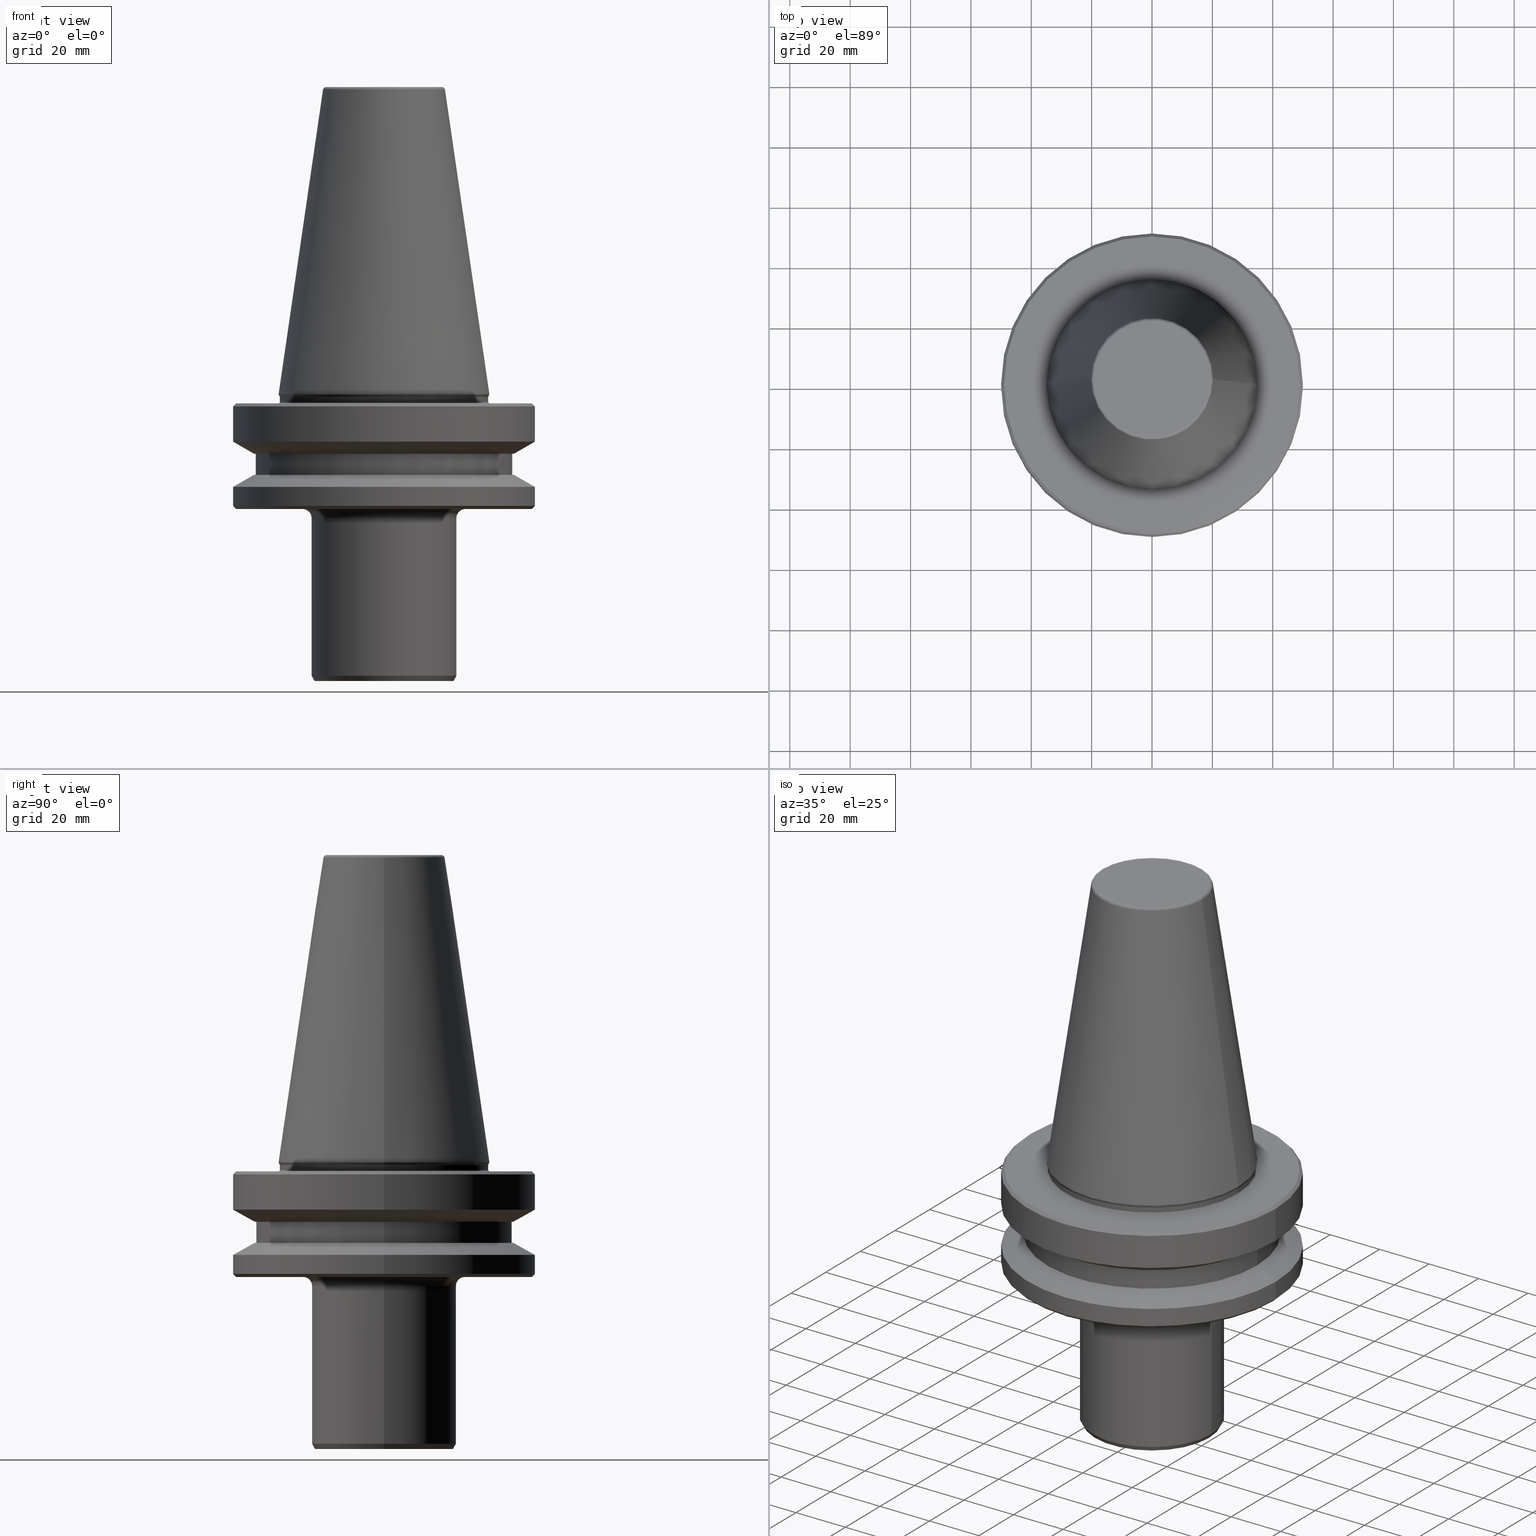
[diagram: canonical four-view strip — front | top / right | iso, engineering-drawing reading convention]
A machine part, canonical four-view strip (front | top / right | iso — engineering-drawing reading convention). The complete STEP part file that produces these views, byte-faithful:
ISO-10303-21;
HEADER;
FILE_DESCRIPTION (( 'STEP AP203' ),
    '1' );
FILE_NAME ('BT50 MT04 095 6.3G 15000 SL.STEP',
    '2019-05-24T05:19:35',
    ( '' ),
    ( '' ),
    'SwSTEP 2.0',
    'SolidWorks 2014',
    '' );
FILE_SCHEMA (( 'CONFIG_CONTROL_DESIGN' ));
ENDSEC;

DATA;
#1 = AXIS2_PLACEMENT_3D ( 'NONE', #28, #867, #813 ) ;
#2 = CARTESIAN_POINT ( 'NONE',  ( -50.00000000000027000, 6.123233995736798400E-015, 108.3108805077434200 ) ) ;
#3 = CARTESIAN_POINT ( 'NONE',  ( 0.0000000000000000000, 0.0000000000000000000, -30.69977999671412400 ) ) ;
#4 = DATE_AND_TIME ( #194, #404 ) ;
#5 = CARTESIAN_POINT ( 'NONE',  ( 0.0000000000000000000, 0.0000000000000000000, -15.70022000322768300 ) ) ;
#6 = DIRECTION ( 'NONE',  ( -0.0000000000000000000, -0.0000000000000000000, 1.000000000000000000 ) ) ;
#7 = VERTEX_POINT ( 'NONE', #98 ) ;
#8 = CYLINDRICAL_SURFACE ( 'NONE', #789, 50.00000000000027000 ) ;
#9 = LINE ( 'NONE', #976, #795 ) ;
#10 = EDGE_CURVE ( 'NONE', #720, #776, #530, .T. ) ;
#11 = CIRCLE ( 'NONE', #46, 49.99999999999982200 ) ;
#12 = DIRECTION ( 'NONE',  ( 1.000000000000000000, 0.0000000000000000000, 0.0000000000000000000 ) ) ;
#13 = ORIENTED_EDGE ( 'NONE', *, *, #291, .T. ) ;
#14 = ORIENTED_EDGE ( 'NONE', *, *, #464, .T. ) ;
#15 = ORIENTED_EDGE ( 'NONE', *, *, #556, .T. ) ;
#16 = DIRECTION ( 'NONE',  ( 0.4999999999999745200, 0.0000000000000000000, 0.8660254037844532500 ) ) ;
#17 = CIRCLE ( 'NONE', #818, 42.49999999999975800 ) ;
#18 = CARTESIAN_POINT ( 'NONE',  ( 50.00000000000027000, 0.0000000000000000000, -15.70022000322768300 ) ) ;
#19 = APPROVAL ( #870, 'UNSPECIFIED' ) ;
#20 = VERTEX_POINT ( 'NONE', #328 ) ;
#21 = EDGE_LOOP ( 'NONE', ( #209, #574, #701, #688 ) ) ;
#22 = AXIS2_PLACEMENT_3D ( 'NONE', #460, #855, #290 ) ;
#23 = VERTEX_POINT ( 'NONE', #787 ) ;
#24 = EDGE_CURVE ( 'NONE', #508, #364, #585, .T. ) ;
#25 = DIRECTION ( 'NONE',  ( 1.000000000000000000, 0.0000000000000000000, 0.0000000000000000000 ) ) ;
#26 = PERSON_AND_ORGANIZATION ( #86, #341 ) ;
#27 = AXIS2_PLACEMENT_3D ( 'NONE', #915, #520, #638 ) ;
#28 = CARTESIAN_POINT ( 'NONE',  ( 27.00000000000000000, 0.0000000000000000000, -40.99999999994119500 ) ) ;
#29 = FACE_OUTER_BOUND ( 'NONE', #83, .T. ) ;
#30 = EDGE_CURVE ( 'NONE', #776, #101, #379, .T. ) ;
#31 = FACE_OUTER_BOUND ( 'NONE', #747, .T. ) ;
#32 = DIRECTION ( 'NONE',  ( -0.0000000000000000000, -0.0000000000000000000, 1.000000000000000000 ) ) ;
#33 = CIRCLE ( 'NONE', #414, 0.4999999999997228900 ) ;
#34 = ORIENTED_EDGE ( 'NONE', *, *, #849, .F. ) ;
#35 = CARTESIAN_POINT ( 'NONE',  ( 0.0000000000000000000, 0.0000000000000000000, -0.9114154412159791700 ) ) ;
#36 = DIRECTION ( 'NONE',  ( 1.000000000000000000, 0.0000000000000000000, 0.0000000000000000000 ) ) ;
#37 = VERTEX_POINT ( 'NONE', #471 ) ;
#38 = AXIS2_PLACEMENT_3D ( 'NONE', #92, #939, #179 ) ;
#39 = ORIENTED_EDGE ( 'NONE', *, *, #405, .T. ) ;
#40 = AXIS2_PLACEMENT_3D ( 'NONE', #183, #245, #945 ) ;
#41 = DIRECTION ( 'NONE',  ( 0.0000000000000000000, 0.0000000000000000000, -1.000000000000000000 ) ) ;
#42 = ORIENTED_EDGE ( 'NONE', *, *, #190, .F. ) ;
#43 = AXIS2_PLACEMENT_3D ( 'NONE', #663, #744, #274 ) ;
#44 = FACE_OUTER_BOUND ( 'NONE', #714, .T. ) ;
#45 = CARTESIAN_POINT ( 'NONE',  ( 0.0000000000000000000, 0.0000000000000000000, -93.26794919243195600 ) ) ;
#46 = AXIS2_PLACEMENT_3D ( 'NONE', #716, #1000, #953 ) ;
#47 = EDGE_CURVE ( 'NONE', #892, #20, #159, .T. ) ;
#48 = DIRECTION ( 'NONE',  ( 1.000000000000000000, 0.0000000000000000000, 0.0000000000000000000 ) ) ;
#49 = CARTESIAN_POINT ( 'NONE',  ( -20.20381645192181700, 0.0000000000000000000, 100.9443082234284800 ) ) ;
#50 = EDGE_LOOP ( 'NONE', ( #128, #155, #222, #880 ) ) ;
#51 = PERSON_AND_ORGANIZATION ( #86, #341 ) ;
#52 = DIRECTION ( 'NONE',  ( -0.0000000000000000000, -0.0000000000000000000, 1.000000000000000000 ) ) ;
#53 = CIRCLE ( 'NONE', #829, 34.99999999999992200 ) ;
#54 = AXIS2_PLACEMENT_3D ( 'NONE', #564, #52, #483 ) ;
#55 = CIRCLE ( 'NONE', #272, 49.99999999999982200 ) ;
#56 = DIRECTION ( 'NONE',  ( -0.0000000000000000000, -0.0000000000000000000, 1.000000000000000000 ) ) ;
#57 = DIRECTION ( 'NONE',  ( 1.000000000000000000, 0.0000000000000000000, 0.0000000000000000000 ) ) ;
#58 = AXIS2_PLACEMENT_3D ( 'NONE', #523, #332, #610 ) ;
#59 = CIRCLE ( 'NONE', #423, 1.000000000000101500 ) ;
#60 = ORIENTED_EDGE ( 'NONE', *, *, #268, .F. ) ;
#61 = ORIENTED_EDGE ( 'NONE', *, *, #388, .T. ) ;
#62 = AXIS2_PLACEMENT_3D ( 'NONE', #735, #109, #275 ) ;
#63 = ORIENTED_EDGE ( 'NONE', *, *, #900, .T. ) ;
#64 = CARTESIAN_POINT ( 'NONE',  ( 0.0000000000000000000, 0.0000000000000000000, -19.70000000000070300 ) ) ;
#65 = ADVANCED_FACE ( 'NONE', ( #560 ), #532, .T. ) ;
#66 = ORIENTED_EDGE ( 'NONE', *, *, #140, .F. ) ;
#67 = CARTESIAN_POINT ( 'NONE',  ( 0.0000000000000000000, 0.0000000000000000000, 108.3108805077434200 ) ) ;
#68 = VECTOR ( 'NONE', #95, 1000.000000000000000 ) ;
#69 = ADVANCED_FACE ( 'NONE', ( #349 ), #852, .F. ) ;
#70 = AXIS2_PLACEMENT_3D ( 'NONE', #360, #624, #717 ) ;
#71 = APPROVAL_ROLE ( '' ) ;
#72 = PERSON_AND_ORGANIZATION ( #86, #341 ) ;
#73 = DIRECTION ( 'NONE',  ( -0.0000000000000000000, -0.0000000000000000000, 1.000000000000000000 ) ) ;
#74 = DIRECTION ( 'NONE',  ( -0.0000000000000000000, -0.0000000000000000000, 1.000000000000000000 ) ) ;
#75 = DIRECTION ( 'NONE',  ( -0.7071067811865474600, 8.659560562354931600E-017, 0.7071067811865475700 ) ) ;
#76 = CARTESIAN_POINT ( 'NONE',  ( 0.0000000000000000000, 0.0000000000000000000, -0.9114154412159791700 ) ) ;
#77 = CARTESIAN_POINT ( 'NONE',  ( 24.00000000000000000, 0.0000000000000000000, -40.99999999994118100 ) ) ;
#78 = FACE_BOUND ( 'NONE', #163, .T. ) ;
#79 = DIRECTION ( 'NONE',  ( 1.000000000000000000, 0.0000000000000000000, 0.0000000000000000000 ) ) ;
#80 = CIRCLE ( 'NONE', #584, 20.20381645192181700 ) ;
#81 = EDGE_CURVE ( 'NONE', #20, #418, #135, .T. ) ;
#82 = CARTESIAN_POINT ( 'NONE',  ( -49.00000000000015600, 0.0000000000000000000, -3.000000000001223900 ) ) ;
#83 = EDGE_LOOP ( 'NONE', ( #15, #39 ) ) ;
#84 = CARTESIAN_POINT ( 'NONE',  ( 20.20381645192181700, 3.375666430431378500E-015, 100.9443082234284800 ) ) ;
#85 = EDGE_CURVE ( 'NONE', #364, #508, #943, .T. ) ;
#86 = PERSON ( 'UNSPECIFIED', 'UNSPECIFIED', 'UNSPECIFIED', ('UNSPECIFIED'), ('UNSPECIFIED'), ('UNSPECIFIED') ) ;
#87 = VERTEX_POINT ( 'NONE', #84 ) ;
#88 = LINE ( 'NONE', #478, #473 ) ;
#89 = AXIS2_PLACEMENT_3D ( 'NONE', #930, #166, #702 ) ;
#90 = ORIENTED_EDGE ( 'NONE', *, *, #594, .T. ) ;
#91 = CARTESIAN_POINT ( 'NONE',  ( 0.0000000000000000000, 43.07217782649175300, -19.70000000000071700 ) ) ;
#92 = CARTESIAN_POINT ( 'NONE',  ( 0.0000000000000000000, 0.0000000000000000000, -95.00000000000001400 ) ) ;
#93 = AXIS2_PLACEMENT_3D ( 'NONE', #443, #986, #292 ) ;
#94 = ORIENTED_EDGE ( 'NONE', *, *, #886, .T. ) ;
#95 = DIRECTION ( 'NONE',  ( -0.0000000000000000000, -0.0000000000000000000, 1.000000000000000000 ) ) ;
#96 = VECTOR ( 'NONE', #75, 1000.000000000000000 ) ;
#97 = CARTESIAN_POINT ( 'NONE',  ( -43.07217782649175300, 5.274820470751872700E-015, -19.70000000000070300 ) ) ;
#98 = CARTESIAN_POINT ( 'NONE',  ( 42.49999999999975800, 0.0000000000000000000, -26.69999999993998000 ) ) ;
#99 = CIRCLE ( 'NONE', #406, 34.49999999999997200 ) ;
#100 = DIRECTION ( 'NONE',  ( 1.000000000000000000, 0.0000000000000000000, 0.0000000000000000000 ) ) ;
#101 = VERTEX_POINT ( 'NONE', #402 ) ;
#102 = PRODUCT_DEFINITION_FORMATION_WITH_SPECIFIED_SOURCE ( 'ANY', '', #796, .NOT_KNOWN. ) ;
#103 = CARTESIAN_POINT ( 'NONE',  ( 0.0000000000000000000, 23.00000000000054400, -95.00000000000000000 ) ) ;
#104 = ORIENTED_EDGE ( 'NONE', *, *, #346, .T. ) ;
#105 = CARTESIAN_POINT ( 'NONE',  ( -50.00000000000027000, 6.123233995736798400E-015, -4.000000000001335800 ) ) ;
#106 = CARTESIAN_POINT ( 'NONE',  ( 24.00000000000000000, 0.0000000000000000000, 108.3108805077434200 ) ) ;
#107 = APPROVAL ( #475, 'UNSPECIFIED' ) ;
#108 = EDGE_LOOP ( 'NONE', ( #642, #981, #854, #13 ) ) ;
#109 = DIRECTION ( 'NONE',  ( -0.0000000000000000000, -0.0000000000000000000, 1.000000000000000000 ) ) ;
#110 = VECTOR ( 'NONE', #511, 999.9999999999998900 ) ;
#111 = DIRECTION ( 'NONE',  ( -1.000000000000000000, 0.0000000000000000000, -0.0000000000000000000 ) ) ;
#112 = DIRECTION ( 'NONE',  ( 1.000000000000000000, 0.0000000000000000000, 0.0000000000000000000 ) ) ;
#113 = CARTESIAN_POINT ( 'NONE',  ( 0.0000000000000000000, 0.0000000000000000000, -2.500000000001723100 ) ) ;
#114 = LINE ( 'NONE', #885, #324 ) ;
#115 = VECTOR ( 'NONE', #206, 999.9999999999998900 ) ;
#116 = DIRECTION ( 'NONE',  ( -0.0000000000000000000, -0.0000000000000000000, 1.000000000000000000 ) ) ;
#117 = ORIENTED_EDGE ( 'NONE', *, *, #157, .T. ) ;
#118 = CC_DESIGN_PERSON_AND_ORGANIZATION_ASSIGNMENT ( #167, #763, ( #498 ) ) ;
#119 = ORIENTED_EDGE ( 'NONE', *, *, #552, .F. ) ;
#120 = DIRECTION ( 'NONE',  ( 1.000000000000000000, 0.0000000000000000000, 0.0000000000000000000 ) ) ;
#121 = DIRECTION ( 'NONE',  ( 1.000000000000000000, 0.0000000000000000000, 0.0000000000000000000 ) ) ;
#122 = EDGE_LOOP ( 'NONE', ( #936, #366, #538, #738 ) ) ;
#123 = DIRECTION ( 'NONE',  ( 0.0000000000000000000, 0.0000000000000000000, 1.000000000000000000 ) ) ;
#124 = EDGE_LOOP ( 'NONE', ( #676, #172, #519, #567 ) ) ;
#125 = DATE_AND_TIME ( #335, #543 ) ;
#126 = ADVANCED_FACE ( 'NONE', ( #783 ), #718, .T. ) ;
#127 = CARTESIAN_POINT ( 'NONE',  ( 0.0000000000000000000, 0.0000000000000000000, 108.3108805077434200 ) ) ;
#128 = ORIENTED_EDGE ( 'NONE', *, *, #399, .T. ) ;
#129 = VECTOR ( 'NONE', #837, 1000.000000000000000 ) ;
#130 = ADVANCED_FACE ( 'NONE', ( #759 ), #303, .T. ) ;
#131 = SHAPE_DEFINITION_REPRESENTATION ( #207, #505 ) ;
#132 = DIRECTION ( 'NONE',  ( 0.0000000000000000000, -0.0000000000000000000, 1.000000000000000000 ) ) ;
#133 = ADVANCED_FACE ( 'NONE', ( #920 ), #482, .T. ) ;
#134 = ORIENTED_EDGE ( 'NONE', *, *, #509, .T. ) ;
#135 = LINE ( 'NONE', #175, #742 ) ;
#136 = VECTOR ( 'NONE', #952, 1000.000000000000000 ) ;
#137 = DIRECTION ( 'NONE',  ( 1.000000000000000000, 0.0000000000000000000, 0.0000000000000000000 ) ) ;
#138 = ORIENTED_EDGE ( 'NONE', *, *, #24, .T. ) ;
#139 = DIRECTION ( 'NONE',  ( -0.0000000000000000000, -0.0000000000000000000, 1.000000000000000000 ) ) ;
#140 = EDGE_CURVE ( 'NONE', #694, #897, #888, .T. ) ;
#141 = DIRECTION ( 'NONE',  ( -0.0000000000000000000, -0.0000000000000000000, 1.000000000000000000 ) ) ;
#142 = EDGE_LOOP ( 'NONE', ( #703, #396, #14, #990 ) ) ;
#143 = DIRECTION ( 'NONE',  ( -0.0000000000000000000, -0.0000000000000000000, 1.000000000000000000 ) ) ;
#144 = CARTESIAN_POINT ( 'NONE',  ( 0.0000000000000000000, 0.0000000000000000000, -40.99999999994119500 ) ) ;
#145 = PERSON_AND_ORGANIZATION ( #86, #341 ) ;
#146 = PRODUCT_DEFINITION ( 'UNKNOWN', '', #102, #780 ) ;
#147 = AXIS2_PLACEMENT_3D ( 'NONE', #911, #535, #201 ) ;
#148 = ORIENTED_EDGE ( 'NONE', *, *, #820, .T. ) ;
#149 = CYLINDRICAL_SURFACE ( 'NONE', #147, 50.00000000000027000 ) ;
#150 = ORIENTED_EDGE ( 'NONE', *, *, #713, .T. ) ;
#151 = CIRCLE ( 'NONE', #435, 42.49999999999975800 ) ;
#152 = ORIENTED_EDGE ( 'NONE', *, *, #449, .T. ) ;
#153 = DIRECTION ( 'NONE',  ( 1.000000000000000000, 0.0000000000000000000, 0.0000000000000000000 ) ) ;
#154 = FACE_OUTER_BOUND ( 'NONE', #489, .T. ) ;
#155 = ORIENTED_EDGE ( 'NONE', *, *, #255, .T. ) ;
#156 = CARTESIAN_POINT ( 'NONE',  ( -42.49999999999975800, 5.204748896376221700E-015, 108.3108805077434200 ) ) ;
#157 = EDGE_CURVE ( 'NONE', #37, #643, #114, .T. ) ;
#158 = ORIENTED_EDGE ( 'NONE', *, *, #221, .F. ) ;
#159 = CIRCLE ( 'NONE', #269, 43.07217782649175300 ) ;
#160 = CONICAL_SURFACE ( 'NONE', #193, 50.00000000000027000, 0.7853981633974482800 ) ;
#161 = DIRECTION ( 'NONE',  ( 0.8660254037844376000, 0.0000000000000000000, 0.5000000000000020000 ) ) ;
#162 = EDGE_CURVE ( 'NONE', #20, #892, #499, .T. ) ;
#163 = EDGE_LOOP ( 'NONE', ( #420, #858 ) ) ;
#164 = CARTESIAN_POINT ( 'NONE',  ( 0.0000000000000000000, 0.0000000000000000000, -37.99999999994118100 ) ) ;
#165 = EDGE_CURVE ( 'NONE', #467, #398, #273, .T. ) ;
#166 = DIRECTION ( 'NONE',  ( 0.0000000000000000000, 0.0000000000000000000, -1.000000000000000000 ) ) ;
#167 = PERSON_AND_ORGANIZATION ( #86, #341 ) ;
#168 = CARTESIAN_POINT ( 'NONE',  ( 42.49999999999975800, 0.0000000000000000000, 108.3108805077434200 ) ) ;
#169 = VERTEX_POINT ( 'NONE', #421 ) ;
#170 = CONICAL_SURFACE ( 'NONE', #800, 48.99999999999970900, 0.7853981633974482800 ) ;
#171 = PLANE ( 'NONE',  #985 ) ;
#172 = ORIENTED_EDGE ( 'NONE', *, *, #235, .T. ) ;
#173 = EDGE_CURVE ( 'NONE', #892, #395, #461, .T. ) ;
#174 = CIRCLE ( 'NONE', #27, 42.49999999999975800 ) ;
#175 = CARTESIAN_POINT ( 'NONE',  ( 43.07217782649175300, 0.0000000000000000000, -19.70000000000070300 ) ) ;
#176 = ORIENTED_EDGE ( 'NONE', *, *, #590, .T. ) ;
#177 = VECTOR ( 'NONE', #539, 1000.000000000000000 ) ;
#178 = ORIENTED_EDGE ( 'NONE', *, *, #464, .F. ) ;
#179 = DIRECTION ( 'NONE',  ( 1.000000000000000000, 0.0000000000000000000, 0.0000000000000000000 ) ) ;
#180 = AXIS2_PLACEMENT_3D ( 'NONE', #210, #257, #313 ) ;
#181 = DIRECTION ( 'NONE',  ( -0.0000000000000000000, -0.0000000000000000000, 1.000000000000000000 ) ) ;
#182 = CC_DESIGN_DATE_AND_TIME_ASSIGNMENT ( #362, #450, ( #498 ) ) ;
#183 = CARTESIAN_POINT ( 'NONE',  ( 0.0000000000000000000, 0.0000000000000000000, 0.0000000000000000000 ) ) ;
#184 = ORIENTED_EDGE ( 'NONE', *, *, #552, .T. ) ;
#185 = ORIENTED_EDGE ( 'NONE', *, *, #968, .T. ) ;
#186 = CIRCLE ( 'NONE', #381, 49.00000000000015600 ) ;
#187 = DIRECTION ( 'NONE',  ( -0.0000000000000000000, -0.0000000000000000000, 1.000000000000000000 ) ) ;
#188 = DIRECTION ( 'NONE',  ( -0.0000000000000000000, -0.0000000000000000000, 1.000000000000000000 ) ) ;
#189 = CC_DESIGN_PERSON_AND_ORGANIZATION_ASSIGNMENT ( #386, #991, ( #102 ) ) ;
#190 = EDGE_CURVE ( 'NONE', #37, #902, #669, .T. ) ;
#191 = DIRECTION ( 'NONE',  ( -0.0000000000000000000, -0.0000000000000000000, 1.000000000000000000 ) ) ;
#192 = CC_DESIGN_DATE_AND_TIME_ASSIGNMENT ( #224, #903, ( #146 ) ) ;
#193 = AXIS2_PLACEMENT_3D ( 'NONE', #286, #766, #490 ) ;
#194 = CALENDAR_DATE ( 2019, 24, 5 ) ;
#195 = EDGE_CURVE ( 'NONE', #437, #485, #53, .T. ) ;
#196 = MECHANICAL_CONTEXT ( 'NONE', #950, 'mechanical' ) ;
#197 = CIRCLE ( 'NONE', #625, 48.99999999999970900 ) ;
#198 = DIRECTION ( 'NONE',  ( 1.000000000000000000, 0.0000000000000000000, 0.0000000000000000000 ) ) ;
#199 = ADVANCED_FACE ( 'NONE', ( #78, #691 ), #171, .F. ) ;
#200 = TOROIDAL_SURFACE ( 'NONE', #477, 27.00000000000000000, 3.000000000000004400 ) ;
#201 = DIRECTION ( 'NONE',  ( 1.000000000000000000, 0.0000000000000000000, 0.0000000000000000000 ) ) ;
#202 = CIRCLE ( 'NONE', #93, 23.00000000000054400 ) ;
#203 = EDGE_LOOP ( 'NONE', ( #382, #158 ) ) ;
#204 = DIRECTION ( 'NONE',  ( 0.0000000000000000000, 0.0000000000000000000, -1.000000000000000000 ) ) ;
#205 = ADVANCED_FACE ( 'NONE', ( #845, #29 ), #565, .F. ) ;
#206 = DIRECTION ( 'NONE',  ( 0.1443082234293895400, 1.767266039134429700E-017, -0.9895327870518760800 ) ) ;
#207 = PRODUCT_DEFINITION_SHAPE ( 'NONE', 'NONE',  #146 ) ;
#208 = DIRECTION ( 'NONE',  ( 1.000000000000000000, 0.0000000000000000000, 0.0000000000000000000 ) ) ;
#209 = ORIENTED_EDGE ( 'NONE', *, *, #609, .T. ) ;
#210 = CARTESIAN_POINT ( 'NONE',  ( 0.0000000000000000000, 0.0000000000000000000, -4.000000000001335800 ) ) ;
#211 = ORIENTED_EDGE ( 'NONE', *, *, #47, .T. ) ;
#212 = DIRECTION ( 'NONE',  ( 1.000000000000000000, 0.0000000000000000000, 0.0000000000000000000 ) ) ;
#213 = ORIENTED_EDGE ( 'NONE', *, *, #278, .T. ) ;
#214 = FACE_OUTER_BOUND ( 'NONE', #337, .T. ) ;
#215 = ADVANCED_FACE ( 'NONE', ( #814 ), #651, .T. ) ;
#216 = SECURITY_CLASSIFICATION_LEVEL ( 'unclassified' ) ;
#217 = CARTESIAN_POINT ( 'NONE',  ( 48.99999999999970900, 0.0000000000000000000, -37.99999999994118100 ) ) ;
#218 = ORIENTED_EDGE ( 'NONE', *, *, #278, .F. ) ;
#219 = CARTESIAN_POINT ( 'NONE',  ( -42.49999999999975800, 5.204748896376221700E-015, -19.70000000000070300 ) ) ;
#220 = CARTESIAN_POINT ( 'NONE',  ( 34.92499999999964900, 4.277078946022088300E-015, 0.0000000000000000000 ) ) ;
#221 = EDGE_CURVE ( 'NONE', #694, #602, #942, .T. ) ;
#222 = ORIENTED_EDGE ( 'NONE', *, *, #859, .F. ) ;
#223 = DIRECTION ( 'NONE',  ( 1.000000000000000000, 0.0000000000000000000, 0.0000000000000000000 ) ) ;
#224 = DATE_AND_TIME ( #429, #650 ) ;
#225 = LINE ( 'NONE', #887, #740 ) ;
#226 = DIRECTION ( 'NONE',  ( 1.000000000000000000, 0.0000000000000000000, 0.0000000000000000000 ) ) ;
#227 = EDGE_CURVE ( 'NONE', #23, #799, #225, .T. ) ;
#228 = CIRCLE ( 'NONE', #771, 43.07217782648930900 ) ;
#229 = DIRECTION ( 'NONE',  ( -0.0000000000000000000, -0.0000000000000000000, 1.000000000000000000 ) ) ;
#230 = CIRCLE ( 'NONE', #518, 24.00000000000000000 ) ;
#231 = DIRECTION ( 'NONE',  ( 1.000000000000000000, 0.0000000000000000000, 0.0000000000000000000 ) ) ;
#232 = VERTEX_POINT ( 'NONE', #596 ) ;
#233 = ORIENTED_EDGE ( 'NONE', *, *, #589, .F. ) ;
#234 =( LENGTH_UNIT ( ) NAMED_UNIT ( * ) SI_UNIT ( .MILLI., .METRE. ) );
#235 = EDGE_CURVE ( 'NONE', #728, #664, #492, .T. ) ;
#236 = CARTESIAN_POINT ( 'NONE',  ( -34.92499999999964900, 4.277078946022088300E-015, -1.084202172485504400E-016 ) ) ;
#237 = ORIENTED_EDGE ( 'NONE', *, *, #81, .T. ) ;
#238 = AXIS2_PLACEMENT_3D ( 'NONE', #628, #623, #502 ) ;
#239 = CIRCLE ( 'NONE', #632, 3.000000000000006200 ) ;
#240 = DIRECTION ( 'NONE',  ( -0.0000000000000000000, -0.0000000000000000000, 1.000000000000000000 ) ) ;
#241 = EDGE_CURVE ( 'NONE', #169, #264, #882, .T. ) ;
#242 = ORIENTED_EDGE ( 'NONE', *, *, #195, .T. ) ;
#243 = DIRECTION ( 'NONE',  ( -0.0000000000000000000, -0.0000000000000000000, 1.000000000000000000 ) ) ;
#244 = CARTESIAN_POINT ( 'NONE',  ( 24.00000000000000000, 0.0000000000000000000, -93.26794919243195600 ) ) ;
#245 = DIRECTION ( 'NONE',  ( -0.0000000000000000000, -0.0000000000000000000, 1.000000000000000000 ) ) ;
#246 = AXIS2_PLACEMENT_3D ( 'NONE', #345, #438, #541 ) ;
#247 = DIRECTION ( 'NONE',  ( -0.7071067811865474600, 0.0000000000000000000, -0.7071067811865475700 ) ) ;
#248 = ORIENTED_EDGE ( 'NONE', *, *, #890, .T. ) ;
#249 = CARTESIAN_POINT ( 'NONE',  ( 49.99999999999982200, 6.123233995736744000E-015, -30.69977999671412400 ) ) ;
#250 = APPROVAL_DATE_TIME ( #459, #19 ) ;
#251 = VECTOR ( 'NONE', #506, 999.9999999999998900 ) ;
#252 = EDGE_CURVE ( 'NONE', #782, #487, #88, .T. ) ;
#253 = CIRCLE ( 'NONE', #393, 1.000000000000098100 ) ;
#254 = MANIFOLD_SOLID_BREP ( 'Revolve1', #792 ) ;
#255 = EDGE_CURVE ( 'NONE', #731, #428, #683, .T. ) ;
#256 = CYLINDRICAL_SURFACE ( 'NONE', #322, 24.00000000000000000 ) ;
#257 = DIRECTION ( 'NONE',  ( 0.0000000000000000000, 0.0000000000000000000, -1.000000000000000000 ) ) ;
#258 = CARTESIAN_POINT ( 'NONE',  ( 34.99999999999992200, 0.0000000000000000000, -2.500000000001723100 ) ) ;
#259 = VERTEX_POINT ( 'NONE', #105 ) ;
#260 = ORIENTED_EDGE ( 'NONE', *, *, #656, .T. ) ;
#261 = DIRECTION ( 'NONE',  ( -0.0000000000000000000, -0.0000000000000000000, 1.000000000000000000 ) ) ;
#262 = CARTESIAN_POINT ( 'NONE',  ( 0.0000000000000000000, 0.0000000000000000000, -3.000000000001223900 ) ) ;
#263 = ORIENTED_EDGE ( 'NONE', *, *, #427, .T. ) ;
#264 = VERTEX_POINT ( 'NONE', #922 ) ;
#265 = CIRCLE ( 'NONE', #878, 24.00000000000000000 ) ;
#266 = DIRECTION ( 'NONE',  ( -0.0000000000000000000, -0.0000000000000000000, 1.000000000000000000 ) ) ;
#267 = EDGE_LOOP ( 'NONE', ( #546, #315, #218, #607 ) ) ;
#268 = EDGE_CURVE ( 'NONE', #720, #467, #860, .T. ) ;
#269 = AXIS2_PLACEMENT_3D ( 'NONE', #430, #811, #333 ) ;
#270 = PERSON_AND_ORGANIZATION ( #86, #341 ) ;
#271 = CARTESIAN_POINT ( 'NONE',  ( -48.99999999999970900, 6.000769315821995400E-015, -37.99999999994118100 ) ) ;
#272 = AXIS2_PLACEMENT_3D ( 'NONE', #883, #496, #36 ) ;
#273 = LINE ( 'NONE', #660, #871 ) ;
#274 = DIRECTION ( 'NONE',  ( 1.000000000000000000, 0.0000000000000000000, 0.0000000000000000000 ) ) ;
#275 = DIRECTION ( 'NONE',  ( 1.000000000000000000, 0.0000000000000000000, 0.0000000000000000000 ) ) ;
#276 = TOROIDAL_SURFACE ( 'NONE', #22, 34.99999999999992200, 0.4999999999997228900 ) ;
#277 = DIRECTION ( 'NONE',  ( -1.000000000000000000, 0.0000000000000000000, 0.0000000000000000000 ) ) ;
#278 = EDGE_CURVE ( 'NONE', #398, #776, #265, .T. ) ;
#279 = EDGE_LOOP ( 'NONE', ( #914, #389 ) ) ;
#280 = CARTESIAN_POINT ( 'NONE',  ( 0.0000000000000000000, 0.0000000000000000000, -30.69977999671412400 ) ) ;
#281 = ADVANCED_FACE ( 'NONE', ( #706 ), #832, .T. ) ;
#282 = DIRECTION ( 'NONE',  ( -0.0000000000000000000, -0.0000000000000000000, 1.000000000000000000 ) ) ;
#283 = CARTESIAN_POINT ( 'NONE',  ( 0.0000000000000000000, 0.0000000000000000000, 108.3108805077434200 ) ) ;
#284 = ORIENTED_EDGE ( 'NONE', *, *, #190, .T. ) ;
#285 = AXIS2_PLACEMENT_3D ( 'NONE', #641, #561, #408 ) ;
#286 = CARTESIAN_POINT ( 'NONE',  ( 0.0000000000000000000, 0.0000000000000000000, -4.000000000001335800 ) ) ;
#287 = ADVANCED_FACE ( 'NONE', ( #446 ), #422, .T. ) ;
#288 =( NAMED_UNIT ( * ) PLANE_ANGLE_UNIT ( ) SI_UNIT ( $, .RADIAN. ) );
#289 = VECTOR ( 'NONE', #344, 1000.000000000000000 ) ;
#290 = DIRECTION ( 'NONE',  ( 1.000000000000000000, 0.0000000000000000000, 0.0000000000000000000 ) ) ;
#291 = EDGE_CURVE ( 'NONE', #722, #643, #645, .T. ) ;
#292 = DIRECTION ( 'NONE',  ( 1.000000000000000000, 0.0000000000000000000, 0.0000000000000000000 ) ) ;
#293 = ADVANCED_FACE ( 'NONE', ( #44 ), #401, .T. ) ;
#294 = CARTESIAN_POINT ( 'NONE',  ( -34.50000000000008500, 4.225031457058379200E-015, 108.3108805077434200 ) ) ;
#295 = AXIS2_PLACEMENT_3D ( 'NONE', #843, #616, #48 ) ;
#296 = DIRECTION ( 'NONE',  ( 1.000000000000000000, 0.0000000000000000000, 0.0000000000000000000 ) ) ;
#297 = ORIENTED_EDGE ( 'NONE', *, *, #926, .F. ) ;
#298 = CARTESIAN_POINT ( 'NONE',  ( 0.0000000000000000000, 0.0000000000000000000, -15.70022000322768300 ) ) ;
#299 = DIRECTION ( 'NONE',  ( 1.000000000000000000, 0.0000000000000000000, 0.0000000000000000000 ) ) ;
#300 = PERSON_AND_ORGANIZATION_ROLE ( 'creator' ) ;
#301 = AXIS2_PLACEMENT_3D ( 'NONE', #767, #550, #314 ) ;
#302 = DIRECTION ( 'NONE',  ( -0.0000000000000000000, -0.0000000000000000000, 1.000000000000000000 ) ) ;
#303 = CYLINDRICAL_SURFACE ( 'NONE', #866, 49.99999999999982200 ) ;
#304 = CARTESIAN_POINT ( 'NONE',  ( -48.99999999999970900, 6.062001655779369300E-015, -37.99999999994118100 ) ) ;
#305 = CONICAL_SURFACE ( 'NONE', #836, 34.92499999999964900, 0.1448138426689043500 ) ;
#306 = ORIENTED_EDGE ( 'NONE', *, *, #879, .T. ) ;
#307 = ORIENTED_EDGE ( 'NONE', *, *, #856, .F. ) ;
#308 = AXIS2_PLACEMENT_3D ( 'NONE', #348, #557, #587 ) ;
#309 = CARTESIAN_POINT ( 'NONE',  ( 49.00000000000015600, 6.062001655779424500E-015, -3.000000000001223900 ) ) ;
#310 = ORIENTED_EDGE ( 'NONE', *, *, #85, .T. ) ;
#311 = AXIS2_PLACEMENT_3D ( 'NONE', #979, #805, #737 ) ;
#312 = ORIENTED_EDGE ( 'NONE', *, *, #346, .F. ) ;
#313 = DIRECTION ( 'NONE',  ( -1.000000000000000000, 0.0000000000000000000, 0.0000000000000000000 ) ) ;
#314 = DIRECTION ( 'NONE',  ( 1.000000000000000000, 0.0000000000000000000, 0.0000000000000000000 ) ) ;
#315 = ORIENTED_EDGE ( 'NONE', *, *, #10, .T. ) ;
#316 = DIRECTION ( 'NONE',  ( 1.000000000000000000, 0.0000000000000000000, 0.0000000000000000000 ) ) ;
#317 = EDGE_CURVE ( 'NONE', #442, #232, #806, .T. ) ;
#318 = DIRECTION ( 'NONE',  ( -0.4999999999999745200, 6.123233995736454200E-017, 0.8660254037844532500 ) ) ;
#319 = CIRCLE ( 'NONE', #807, 34.92499999999964900 ) ;
#320 = AXIS2_PLACEMENT_3D ( 'NONE', #790, #367, #690 ) ;
#321 = CARTESIAN_POINT ( 'NONE',  ( 0.0000000000000000000, 0.0000000000000000000, -37.99999999994118100 ) ) ;
#322 = AXIS2_PLACEMENT_3D ( 'NONE', #917, #143, #79 ) ;
#323 = CARTESIAN_POINT ( 'NONE',  ( 34.50000000000008500, 0.0000000000000000000, 108.3108805077434200 ) ) ;
#324 = VECTOR ( 'NONE', #801, 999.9999999999998900 ) ;
#325 = CARTESIAN_POINT ( 'NONE',  ( 48.99999999999970900, 0.0000000000000000000, -37.99999999994118100 ) ) ;
#326 = AXIS2_PLACEMENT_3D ( 'NONE', #383, #41, #111 ) ;
#327 = CYLINDRICAL_SURFACE ( 'NONE', #238, 34.50000000000008500 ) ;
#328 = CARTESIAN_POINT ( 'NONE',  ( 43.07217782649175300, 0.0000000000000000000, -19.70000000000070300 ) ) ;
#329 = ORIENTED_EDGE ( 'NONE', *, *, #908, .F. ) ;
#330 = ORIENTED_EDGE ( 'NONE', *, *, #884, .F. ) ;
#331 = AXIS2_PLACEMENT_3D ( 'NONE', #67, #187, #25 ) ;
#332 = DIRECTION ( 'NONE',  ( -0.0000000000000000000, -0.0000000000000000000, 1.000000000000000000 ) ) ;
#333 = DIRECTION ( 'NONE',  ( 1.000000000000000000, 0.0000000000000000000, 0.0000000000000000000 ) ) ;
#334 = EDGE_LOOP ( 'NONE', ( #507, #924, #583, #756 ) ) ;
#335 = CALENDAR_DATE ( 2019, 24, 5 ) ;
#336 = CARTESIAN_POINT ( 'NONE',  ( 0.0000000000000000000, 0.0000000000000000000, 101.7999999999989900 ) ) ;
#337 = EDGE_LOOP ( 'NONE', ( #929, #940, #148, #425 ) ) ;
#338 = DIRECTION ( 'NONE',  ( -0.0000000000000000000, -0.0000000000000000000, 1.000000000000000000 ) ) ;
#339 = ORIENTED_EDGE ( 'NONE', *, *, #890, .F. ) ;
#340 = FACE_BOUND ( 'NONE', #959, .T. ) ;
#341 = ORGANIZATION ( 'UNSPECIFIED', 'UNSPECIFIED', '' ) ;
#342 = DIRECTION ( 'NONE',  ( 0.0000000000000000000, -1.000000000000000000, 0.0000000000000000000 ) ) ;
#343 = ORIENTED_EDGE ( 'NONE', *, *, #559, .F. ) ;
#344 = DIRECTION ( 'NONE',  ( 0.8660254037844390400, 1.060575238724907400E-016, -0.4999999999999993300 ) ) ;
#345 = CARTESIAN_POINT ( 'NONE',  ( 0.0000000000000000000, 0.0000000000000000000, -37.99999999994118100 ) ) ;
#346 = EDGE_CURVE ( 'NONE', #232, #101, #239, .T. ) ;
#347 = ORIENTED_EDGE ( 'NONE', *, *, #195, .F. ) ;
#348 = CARTESIAN_POINT ( 'NONE',  ( 0.0000000000000000000, 0.0000000000000000000, 100.7999999999988900 ) ) ;
#349 = FACE_OUTER_BOUND ( 'NONE', #987, .T. ) ;
#350 = FACE_OUTER_BOUND ( 'NONE', #975, .T. ) ;
#351 = DIRECTION ( 'NONE',  ( -0.0000000000000000000, -0.0000000000000000000, 1.000000000000000000 ) ) ;
#352 = ORIENTED_EDGE ( 'NONE', *, *, #859, .T. ) ;
#353 = ORIENTED_EDGE ( 'NONE', *, *, #268, .T. ) ;
#354 = CC_DESIGN_PERSON_AND_ORGANIZATION_ASSIGNMENT ( #270, #356, ( #796 ) ) ;
#355 = CARTESIAN_POINT ( 'NONE',  ( 0.0000000000000000000, 0.0000000000000000000, 0.0000000000000000000 ) ) ;
#356 = PERSON_AND_ORGANIZATION_ROLE ( 'design_owner' ) ;
#357 = AXIS2_PLACEMENT_3D ( 'NONE', #881, #582, #563 ) ;
#358 = CARTESIAN_POINT ( 'NONE',  ( 0.0000000000000000000, 0.0000000000000000000, -26.69999999993998000 ) ) ;
#359 = AXIS2_PLACEMENT_3D ( 'NONE', #35, #572, #797 ) ;
#360 = CARTESIAN_POINT ( 'NONE',  ( 0.0000000000000000000, 0.0000000000000000000, 100.9443082234284800 ) ) ;
#361 = ORIENTED_EDGE ( 'NONE', *, *, #861, .T. ) ;
#362 = DATE_AND_TIME ( #569, #770 ) ;
#363 =( NAMED_UNIT ( * ) SI_UNIT ( $, .STERADIAN. ) SOLID_ANGLE_UNIT ( ) );
#364 = VERTEX_POINT ( 'NONE', #514 ) ;
#365 = FACE_OUTER_BOUND ( 'NONE', #644, .T. ) ;
#366 = ORIENTED_EDGE ( 'NONE', *, *, #589, .T. ) ;
#367 = DIRECTION ( 'NONE',  ( -0.0000000000000000000, -0.0000000000000000000, 1.000000000000000000 ) ) ;
#368 = ORIENTED_EDGE ( 'NONE', *, *, #861, .F. ) ;
#369 = ADVANCED_FACE ( 'NONE', ( #617 ), #586, .T. ) ;
#370 = CIRCLE ( 'NONE', #411, 50.00000000000027000 ) ;
#371 = FACE_OUTER_BOUND ( 'NONE', #469, .T. ) ;
#372 = DIRECTION ( 'NONE',  ( 1.000000000000000000, 0.0000000000000000000, 0.0000000000000000000 ) ) ;
#373 = AXIS2_PLACEMENT_3D ( 'NONE', #164, #682, #825 ) ;
#374 = ADVANCED_FACE ( 'NONE', ( #214 ), #160, .T. ) ;
#375 = APPLICATION_PROTOCOL_DEFINITION ( 'international standard', 'config_control_design', 1994, #950 ) ;
#376 = CARTESIAN_POINT ( 'NONE',  ( -50.00000000000027000, 6.123233995736798400E-015, -15.70022000322768300 ) ) ;
#377 = ORIENTED_EDGE ( 'NONE', *, *, #856, .T. ) ;
#378 = DIRECTION ( 'NONE',  ( 1.000000000000000000, 0.0000000000000000000, 0.0000000000000000000 ) ) ;
#379 = LINE ( 'NONE', #665, #963 ) ;
#380 = LINE ( 'NONE', #2, #562 ) ;
#381 = AXIS2_PLACEMENT_3D ( 'NONE', #262, #998, #579 ) ;
#382 = ORIENTED_EDGE ( 'NONE', *, *, #609, .F. ) ;
#383 = CARTESIAN_POINT ( 'NONE',  ( 0.0000000000000000000, 49.00000000000015600, -3.000000000001223900 ) ) ;
#384 = DIRECTION ( 'NONE',  ( -0.1443082234293895400, 0.0000000000000000000, -0.9895327870518760800 ) ) ;
#385 = EDGE_CURVE ( 'NONE', #965, #101, #662, .T. ) ;
#386 = PERSON_AND_ORGANIZATION ( #86, #341 ) ;
#387 = AXIS2_PLACEMENT_3D ( 'NONE', #76, #889, #296 ) ;
#388 = EDGE_CURVE ( 'NONE', #602, #472, #994, .T. ) ;
#389 = ORIENTED_EDGE ( 'NONE', *, *, #47, .F. ) ;
#390 = DIRECTION ( 'NONE',  ( -0.0000000000000000000, -0.0000000000000000000, 1.000000000000000000 ) ) ;
#391 = CIRCLE ( 'NONE', #786, 50.00000000000027000 ) ;
#392 = FACE_OUTER_BOUND ( 'NONE', #279, .T. ) ;
#393 = AXIS2_PLACEMENT_3D ( 'NONE', #419, #342, #434 ) ;
#394 = CONICAL_SURFACE ( 'NONE', #180, 50.00000000000027000, 0.7853981633974482800 ) ;
#395 = VERTEX_POINT ( 'NONE', #376 ) ;
#396 = ORIENTED_EDGE ( 'NONE', *, *, #252, .T. ) ;
#397 = CARTESIAN_POINT ( 'NONE',  ( 42.49999999999975800, 0.0000000000000000000, -19.70000000000070300 ) ) ;
#398 = VERTEX_POINT ( 'NONE', #244 ) ;
#399 = EDGE_CURVE ( 'NONE', #7, #731, #17, .T. ) ;
#400 = ORIENTED_EDGE ( 'NONE', *, *, #568, .T. ) ;
#401 = CONICAL_SURFACE ( 'NONE', #38, 23.00000000000054400, 0.5235987755982695100 ) ;
#402 = CARTESIAN_POINT ( 'NONE',  ( -24.00000000000000000, 2.939152317953647900E-015, -40.99999999994118100 ) ) ;
#403 = APPLICATION_PROTOCOL_DEFINITION ( 'international standard', 'config_control_design', 1994, #526 ) ;
#404 = LOCAL_TIME ( 10, 49, 35.00000000000000000, #627 ) ;
#405 = EDGE_CURVE ( 'NONE', #782, #753, #186, .T. ) ;
#406 = AXIS2_PLACEMENT_3D ( 'NONE', #839, #458, #137 ) ;
#407 = FACE_OUTER_BOUND ( 'NONE', #494, .T. ) ;
#408 = DIRECTION ( 'NONE',  ( -1.000000000000000000, 0.0000000000000000000, -0.0000000000000000000 ) ) ;
#409 = FACE_OUTER_BOUND ( 'NONE', #802, .T. ) ;
#410 = FACE_OUTER_BOUND ( 'NONE', #142, .T. ) ;
#411 = AXIS2_PLACEMENT_3D ( 'NONE', #298, #73, #12 ) ;
#412 = ORIENTED_EDGE ( 'NONE', *, *, #916, .T. ) ;
#413 = CARTESIAN_POINT ( 'NONE',  ( 0.0000000000000000000, 0.0000000000000000000, -19.70000000000070300 ) ) ;
#414 = AXIS2_PLACEMENT_3D ( 'NONE', #901, #984, #621 ) ;
#415 = DIRECTION ( 'NONE',  ( -0.0000000000000000000, -0.0000000000000000000, 1.000000000000000000 ) ) ;
#416 = FACE_OUTER_BOUND ( 'NONE', #108, .T. ) ;
#417 = DIRECTION ( 'NONE',  ( -1.000000000000000000, 0.0000000000000000000, -0.0000000000000000000 ) ) ;
#418 = VERTEX_POINT ( 'NONE', #18 ) ;
#419 = CARTESIAN_POINT ( 'NONE',  ( 19.21428366486965800, 0.0000000000000000000, 100.7999999999988900 ) ) ;
#420 = ORIENTED_EDGE ( 'NONE', *, *, #399, .F. ) ;
#421 = CARTESIAN_POINT ( 'NONE',  ( -19.21428366486965800, 2.413662506824916700E-015, 101.7999999999989900 ) ) ;
#422 = CYLINDRICAL_SURFACE ( 'NONE', #43, 34.50000000000008500 ) ;
#423 = AXIS2_PLACEMENT_3D ( 'NONE', #904, #529, #996 ) ;
#424 = ORIENTED_EDGE ( 'NONE', *, *, #30, .F. ) ;
#425 = ORIENTED_EDGE ( 'NONE', *, *, #773, .T. ) ;
#426 = EDGE_CURVE ( 'NONE', #395, #259, #380, .T. ) ;
#427 = EDGE_CURVE ( 'NONE', #398, #965, #761, .T. ) ;
#428 = VERTEX_POINT ( 'NONE', #219 ) ;
#429 = CALENDAR_DATE ( 2019, 24, 5 ) ;
#430 = CARTESIAN_POINT ( 'NONE',  ( 0.0000000000000000000, 0.0000000000000000000, -19.70000000000070300 ) ) ;
#431 = FACE_OUTER_BOUND ( 'NONE', #548, .T. ) ;
#432 = DIRECTION ( 'NONE',  ( 1.000000000000000000, 0.0000000000000000000, 0.0000000000000000000 ) ) ;
#433 = CIRCLE ( 'NONE', #501, 43.07217782648930900 ) ;
#434 = DIRECTION ( 'NONE',  ( 0.0000000000000000000, 0.0000000000000000000, -1.000000000000000000 ) ) ;
#435 = AXIS2_PLACEMENT_3D ( 'NONE', #758, #139, #212 ) ;
#436 = FACE_OUTER_BOUND ( 'NONE', #267, .T. ) ;
#437 = VERTEX_POINT ( 'NONE', #913 ) ;
#438 = DIRECTION ( 'NONE',  ( -0.0000000000000000000, -0.0000000000000000000, 1.000000000000000000 ) ) ;
#439 = ADVANCED_FACE ( 'NONE', ( #350 ), #944, .T. ) ;
#440 = CARTESIAN_POINT ( 'NONE',  ( 0.0000000000000000000, 0.0000000000000000000, 0.0000000000000000000 ) ) ;
#441 = AXIS2_PLACEMENT_3D ( 'NONE', #967, #191, #809 ) ;
#442 = VERTEX_POINT ( 'NONE', #452 ) ;
#443 = CARTESIAN_POINT ( 'NONE',  ( 0.0000000000000000000, 0.0000000000000000000, -95.00000000000001400 ) ) ;
#444 = ADVANCED_FACE ( 'NONE', ( #431 ), #327, .T. ) ;
#445 = ORIENTED_EDGE ( 'NONE', *, *, #291, .F. ) ;
#446 = FACE_OUTER_BOUND ( 'NONE', #876, .T. ) ;
#447 = CARTESIAN_POINT ( 'NONE',  ( 23.00000000000054400, 0.0000000000000000000, -95.00000000000001400 ) ) ;
#448 = CC_DESIGN_APPROVAL ( #947, ( #498 ) ) ;
#449 = EDGE_CURVE ( 'NONE', #485, #437, #964, .T. ) ;
#450 = DATE_TIME_ROLE ( 'classification_date' ) ;
#451 = EDGE_LOOP ( 'NONE', ( #184, #361, #542, #343 ) ) ;
#452 = CARTESIAN_POINT ( 'NONE',  ( 27.00000000000000000, 0.0000000000000000000, -37.99999999994118800 ) ) ;
#453 = ADVANCED_FACE ( 'NONE', ( #416 ), #305, .T. ) ;
#454 = ORIENTED_EDGE ( 'NONE', *, *, #427, .F. ) ;
#455 = EDGE_LOOP ( 'NONE', ( #588, #377, #152, #470 ) ) ;
#456 = CARTESIAN_POINT ( 'NONE',  ( 34.92499999999964900, 0.0000000000000000000, -1.084202172485504400E-016 ) ) ;
#457 = AXIS2_PLACEMENT_3D ( 'NONE', #64, #689, #208 ) ;
#458 = DIRECTION ( 'NONE',  ( -0.0000000000000000000, -0.0000000000000000000, 1.000000000000000000 ) ) ;
#459 = DATE_AND_TIME ( #533, #956 ) ;
#460 = CARTESIAN_POINT ( 'NONE',  ( 0.0000000000000000000, 0.0000000000000000000, -2.500000000001723100 ) ) ;
#461 = LINE ( 'NONE', #97, #251 ) ;
#462 = CARTESIAN_POINT ( 'NONE',  ( 49.99999999999982200, 0.0000000000000000000, -30.69977999671412400 ) ) ;
#463 = CIRCLE ( 'NONE', #746, 49.00000000000015600 ) ;
#464 = EDGE_CURVE ( 'NONE', #487, #259, #743, .T. ) ;
#465 = CARTESIAN_POINT ( 'NONE',  ( 0.0000000000000000000, 0.0000000000000000000, -40.99999999994119500 ) ) ;
#466 = CONICAL_SURFACE ( 'NONE', #536, 43.07217782649175300, 1.047197551196595400 ) ;
#467 = VERTEX_POINT ( 'NONE', #447 ) ;
#468 = DIRECTION ( 'NONE',  ( 0.0000000000000000000, -0.0000000000000000000, 1.000000000000000000 ) ) ;
#469 = EDGE_LOOP ( 'NONE', ( #329, #134, #117, #445 ) ) ;
#470 = ORIENTED_EDGE ( 'NONE', *, *, #916, .F. ) ;
#471 = CARTESIAN_POINT ( 'NONE',  ( 34.49999999999997200, 0.0000000000000000000, -0.9114154412159791700 ) ) ;
#472 = VERTEX_POINT ( 'NONE', #515 ) ;
#473 = VECTOR ( 'NONE', #808, 1000.000000000000000 ) ;
#474 = DIRECTION ( 'NONE',  ( 0.0000000000000000000, 0.0000000000000000000, -1.000000000000000000 ) ) ;
#475 = APPROVAL_STATUS ( 'not_yet_approved' ) ;
#476 = DIRECTION ( 'NONE',  ( 0.0000000000000000000, 0.0000000000000000000, -1.000000000000000000 ) ) ;
#477 = AXIS2_PLACEMENT_3D ( 'NONE', #144, #229, #226 ) ;
#478 = CARTESIAN_POINT ( 'NONE',  ( 50.00000000000027000, 6.123233995736798400E-015, -4.000000000001335800 ) ) ;
#479 = EDGE_LOOP ( 'NONE', ( #347, #620 ) ) ;
#480 = DIRECTION ( 'NONE',  ( 1.000000000000000000, 0.0000000000000000000, 0.0000000000000000000 ) ) ;
#481 = AXIS2_PLACEMENT_3D ( 'NONE', #779, #630, #687 ) ;
#482 = CONICAL_SURFACE ( 'NONE', #357, 48.99999999999970900, 0.7853981633974482800 ) ;
#483 = DIRECTION ( 'NONE',  ( 1.000000000000000000, 0.0000000000000000000, 0.0000000000000000000 ) ) ;
#484 = LINE ( 'NONE', #733, #653 ) ;
#485 = VERTEX_POINT ( 'NONE', #525 ) ;
#486 = AXIS2_PLACEMENT_3D ( 'NONE', #336, #670, #603 ) ;
#487 = VERTEX_POINT ( 'NONE', #626 ) ;
#488 = DIRECTION ( 'NONE',  ( 0.7071067811865474600, 0.0000000000000000000, 0.7071067811865475700 ) ) ;
#489 = EDGE_LOOP ( 'NONE', ( #119, #555, #63, #647 ) ) ;
#490 = DIRECTION ( 'NONE',  ( -1.000000000000000000, 0.0000000000000000000, 0.0000000000000000000 ) ) ;
#491 = AXIS2_PLACEMENT_3D ( 'NONE', #997, #132, #751 ) ;
#492 = LINE ( 'NONE', #249, #289 ) ;
#493 = ORIENTED_EDGE ( 'NONE', *, *, #910, .T. ) ;
#494 = EDGE_LOOP ( 'NONE', ( #646, #211, #237, #895 ) ) ;
#495 = EDGE_CURVE ( 'NONE', #87, #643, #923, .T. ) ;
#496 = DIRECTION ( 'NONE',  ( -0.0000000000000000000, -0.0000000000000000000, 1.000000000000000000 ) ) ;
#497 = DIRECTION ( 'NONE',  ( -0.8660254037844390400, 0.0000000000000000000, -0.4999999999999993300 ) ) ;
#498 = SECURITY_CLASSIFICATION ( '', '', #216 ) ;
#499 = CIRCLE ( 'NONE', #62, 43.07217782649175300 ) ;
#500 = DIRECTION ( 'NONE',  ( -0.0000000000000000000, -0.0000000000000000000, 1.000000000000000000 ) ) ;
#501 = AXIS2_PLACEMENT_3D ( 'NONE', #358, #116, #667 ) ;
#502 = DIRECTION ( 'NONE',  ( 1.000000000000000000, 0.0000000000000000000, 0.0000000000000000000 ) ) ;
#503 = CIRCLE ( 'NONE', #70, 20.20381645192181700 ) ;
#504 = ORIENTED_EDGE ( 'NONE', *, *, #908, .T. ) ;
#505 = ADVANCED_BREP_SHAPE_REPRESENTATION ( 'BT50 MT04 095 6.3G 15000 SL', ( #254, #547 ), #863 ) ;
#506 = DIRECTION ( 'NONE',  ( -0.8660254037844376000, 1.060575238724905600E-016, 0.5000000000000020000 ) ) ;
#507 = ORIENTED_EDGE ( 'NONE', *, *, #162, .T. ) ;
#508 = VERTEX_POINT ( 'NONE', #606 ) ;
#509 = EDGE_CURVE ( 'NONE', #902, #37, #99, .T. ) ;
#510 = AXIS2_PLACEMENT_3D ( 'NONE', #3, #622, #480 ) ;
#511 = DIRECTION ( 'NONE',  ( -0.4226182617406567000, 5.175581015019135500E-017, 0.9063077870366700300 ) ) ;
#512 = ORIENTED_EDGE ( 'NONE', *, *, #992, .F. ) ;
#513 = ADVANCED_FACE ( 'NONE', ( #719 ), #873, .T. ) ;
#514 = CARTESIAN_POINT ( 'NONE',  ( -34.50000000000019900, 4.255647627037059800E-015, -2.500000000001723100 ) ) ;
#515 = CARTESIAN_POINT ( 'NONE',  ( 49.99999999999982200, 0.0000000000000000000, -36.99999999994106800 ) ) ;
#516 = EDGE_CURVE ( 'NONE', #674, #87, #80, .T. ) ;
#517 = DIRECTION ( 'NONE',  ( -0.0000000000000000000, -0.0000000000000000000, 1.000000000000000000 ) ) ;
#518 = AXIS2_PLACEMENT_3D ( 'NONE', #705, #302, #762 ) ;
#519 = ORIENTED_EDGE ( 'NONE', *, *, #933, .T. ) ;
#520 = DIRECTION ( 'NONE',  ( -0.0000000000000000000, -0.0000000000000000000, 1.000000000000000000 ) ) ;
#521 = ADVANCED_FACE ( 'NONE', ( #891 ), #671, .T. ) ;
#522 = LINE ( 'NONE', #793, #110 ) ;
#523 = CARTESIAN_POINT ( 'NONE',  ( 0.0000000000000000000, 0.0000000000000000000, -36.99999999994106800 ) ) ;
#524 = CONICAL_SURFACE ( 'NONE', #89, 34.92499999999964900, 0.1448138426689043500 ) ;
#525 = CARTESIAN_POINT ( 'NONE',  ( -34.99999999999992200, 4.286263797015727000E-015, -3.000000000001334900 ) ) ;
#526 = APPLICATION_CONTEXT ( 'configuration controlled 3d designs of mechanical parts and assemblies' ) ;
#527 = ORIENTED_EDGE ( 'NONE', *, *, #241, .F. ) ;
#528 = ADVANCED_FACE ( 'NONE', ( #693 ), #276, .F. ) ;
#529 = DIRECTION ( 'NONE',  ( 1.224646799147353200E-016, 1.000000000000000000, 0.0000000000000000000 ) ) ;
#530 = LINE ( 'NONE', #721, #993 ) ;
#531 = DIRECTION ( 'NONE',  ( 1.000000000000000000, 0.0000000000000000000, 0.0000000000000000000 ) ) ;
#532 = CONICAL_SURFACE ( 'NONE', #765, 49.99999999999982200, 1.047197551196598500 ) ;
#533 = CALENDAR_DATE ( 2019, 24, 5 ) ;
#534 = AXIS2_PLACEMENT_3D ( 'NONE', #103, #468, #432 ) ;
#535 = DIRECTION ( 'NONE',  ( -0.0000000000000000000, -0.0000000000000000000, 1.000000000000000000 ) ) ;
#536 = AXIS2_PLACEMENT_3D ( 'NONE', #413, #56, #712 ) ;
#537 = CC_DESIGN_APPROVAL ( #19, ( #146 ) ) ;
#538 = ORIENTED_EDGE ( 'NONE', *, *, #992, .T. ) ;
#539 = DIRECTION ( 'NONE',  ( -0.0000000000000000000, -0.0000000000000000000, 1.000000000000000000 ) ) ;
#540 = CARTESIAN_POINT ( 'NONE',  ( 0.0000000000000000000, 0.0000000000000000000, -4.000000000001335800 ) ) ;
#541 = DIRECTION ( 'NONE',  ( 1.000000000000000000, 0.0000000000000000000, 0.0000000000000000000 ) ) ;
#542 = ORIENTED_EDGE ( 'NONE', *, *, #893, .F. ) ;
#543 = LOCAL_TIME ( 10, 49, 35.00000000000000000, #750 ) ;
#544 = DIRECTION ( 'NONE',  ( -0.0000000000000000000, -0.0000000000000000000, 1.000000000000000000 ) ) ;
#545 = CARTESIAN_POINT ( 'NONE',  ( 0.0000000000000000000, 0.0000000000000000000, -26.69999999993998000 ) ) ;
#546 = ORIENTED_EDGE ( 'NONE', *, *, #919, .T. ) ;
#547 = AXIS2_PLACEMENT_3D ( 'NONE', #440, #123, #875 ) ;
#548 = EDGE_LOOP ( 'NONE', ( #339, #310, #639, #772 ) ) ;
#549 = ORIENTED_EDGE ( 'NONE', *, *, #968, .F. ) ;
#550 = DIRECTION ( 'NONE',  ( -0.0000000000000000000, -0.0000000000000000000, 1.000000000000000000 ) ) ;
#551 = LINE ( 'NONE', #294, #129 ) ;
#552 = EDGE_CURVE ( 'NONE', #87, #674, #503, .T. ) ;
#553 = VECTOR ( 'NONE', #838, 1000.000000000000000 ) ;
#554 = CC_DESIGN_SECURITY_CLASSIFICATION ( #498, ( #102 ) ) ;
#555 = ORIENTED_EDGE ( 'NONE', *, *, #495, .T. ) ;
#556 = EDGE_CURVE ( 'NONE', #753, #782, #463, .T. ) ;
#557 = DIRECTION ( 'NONE',  ( -0.0000000000000000000, -0.0000000000000000000, 1.000000000000000000 ) ) ;
#558 = ORIENTED_EDGE ( 'NONE', *, *, #884, .T. ) ;
#559 = EDGE_CURVE ( 'NONE', #87, #264, #253, .T. ) ;
#560 = FACE_OUTER_BOUND ( 'NONE', #659, .T. ) ;
#561 = DIRECTION ( 'NONE',  ( 0.0000000000000000000, 0.0000000000000000000, -1.000000000000000000 ) ) ;
#562 = VECTOR ( 'NONE', #338, 1000.000000000000000 ) ;
#563 = DIRECTION ( 'NONE',  ( 1.000000000000000000, 0.0000000000000000000, 0.0000000000000000000 ) ) ;
#564 = CARTESIAN_POINT ( 'NONE',  ( 0.0000000000000000000, 0.0000000000000000000, 108.3108805077434200 ) ) ;
#565 = PLANE ( 'NONE',  #326 ) ;
#566 = CARTESIAN_POINT ( 'NONE',  ( -34.92499999999964900, 0.0000000000000000000, 0.0000000000000000000 ) ) ;
#567 = ORIENTED_EDGE ( 'NONE', *, *, #227, .F. ) ;
#568 = EDGE_CURVE ( 'NONE', #897, #799, #484, .T. ) ;
#569 = CALENDAR_DATE ( 2019, 24, 5 ) ;
#570 = APPROVAL_ROLE ( '' ) ;
#571 = EDGE_LOOP ( 'NONE', ( #658, #60 ) ) ;
#572 = DIRECTION ( 'NONE',  ( -0.0000000000000000000, -0.0000000000000000000, 1.000000000000000000 ) ) ;
#573 = FACE_OUTER_BOUND ( 'NONE', #932, .T. ) ;
#574 = ORIENTED_EDGE ( 'NONE', *, *, #140, .T. ) ;
#575 = CIRCLE ( 'NONE', #457, 42.49999999999975800 ) ;
#576 = CARTESIAN_POINT ( 'NONE',  ( 0.0000000000000000000, 0.0000000000000000000, -4.000000000001335800 ) ) ;
#577 = TOROIDAL_SURFACE ( 'NONE', #320, 34.99999999999992200, 0.4999999999997228900 ) ;
#578 = AXIS2_PLACEMENT_3D ( 'NONE', #113, #815, #57 ) ;
#579 = DIRECTION ( 'NONE',  ( 1.000000000000000000, 0.0000000000000000000, 0.0000000000000000000 ) ) ;
#580 = ORIENTED_EDGE ( 'NONE', *, *, #849, .T. ) ;
#581 = DIRECTION ( 'NONE',  ( 1.000000000000000000, 0.0000000000000000000, 0.0000000000000000000 ) ) ;
#582 = DIRECTION ( 'NONE',  ( -0.0000000000000000000, -0.0000000000000000000, 1.000000000000000000 ) ) ;
#583 = ORIENTED_EDGE ( 'NONE', *, *, #879, .F. ) ;
#584 = AXIS2_PLACEMENT_3D ( 'NONE', #692, #141, #372 ) ;
#585 = CIRCLE ( 'NONE', #578, 34.50000000000019900 ) ;
#586 = CONICAL_SURFACE ( 'NONE', #387, 34.49999999999997200, 0.4363323129985352000 ) ;
#587 = DIRECTION ( 'NONE',  ( 1.000000000000000000, 0.0000000000000000000, 0.0000000000000000000 ) ) ;
#588 = ORIENTED_EDGE ( 'NONE', *, *, #85, .F. ) ;
#589 = EDGE_CURVE ( 'NONE', #897, #472, #55, .T. ) ;
#590 = EDGE_CURVE ( 'NONE', #23, #728, #433, .T. ) ;
#591 = CC_DESIGN_PERSON_AND_ORGANIZATION_ASSIGNMENT ( #51, #857, ( #146 ) ) ;
#592 = PERSON_AND_ORGANIZATION ( #86, #341 ) ;
#593 = DIRECTION ( 'NONE',  ( -0.0000000000000000000, -0.0000000000000000000, 1.000000000000000000 ) ) ;
#594 = EDGE_CURVE ( 'NONE', #418, #487, #848, .T. ) ;
#595 = ORIENTED_EDGE ( 'NONE', *, *, #385, .T. ) ;
#596 = CARTESIAN_POINT ( 'NONE',  ( -27.00000000000000000, 3.306546357697854100E-015, -37.99999999994118800 ) ) ;
#597 = ADVANCED_FACE ( 'NONE', ( #31 ), #8, .T. ) ;
#598 = FACE_OUTER_BOUND ( 'NONE', #571, .T. ) ;
#599 = CARTESIAN_POINT ( 'NONE',  ( -24.00000000000000000, 2.939152317953647900E-015, -93.26794919243195600 ) ) ;
#600 = FACE_OUTER_BOUND ( 'NONE', #124, .T. ) ;
#601 = CIRCLE ( 'NONE', #995, 0.4999999999997228900 ) ;
#602 = VERTEX_POINT ( 'NONE', #325 ) ;
#603 = DIRECTION ( 'NONE',  ( 1.000000000000000000, 0.0000000000000000000, 0.0000000000000000000 ) ) ;
#604 = ADVANCED_FACE ( 'NONE', ( #794 ), #170, .T. ) ;
#605 = AXIS2_PLACEMENT_3D ( 'NONE', #869, #962, #941 ) ;
#606 = CARTESIAN_POINT ( 'NONE',  ( 34.50000000000019900, 0.0000000000000000000, -2.500000000001723100 ) ) ;
#607 = ORIENTED_EDGE ( 'NONE', *, *, #165, .F. ) ;
#608 = EDGE_CURVE ( 'NONE', #395, #418, #391, .T. ) ;
#609 = EDGE_CURVE ( 'NONE', #602, #694, #197, .T. ) ;
#610 = DIRECTION ( 'NONE',  ( 1.000000000000000000, 0.0000000000000000000, 0.0000000000000000000 ) ) ;
#611 = DIRECTION ( 'NONE',  ( -0.0000000000000000000, -0.0000000000000000000, 1.000000000000000000 ) ) ;
#612 = ORIENTED_EDGE ( 'NONE', *, *, #970, .T. ) ;
#613 = DIRECTION ( 'NONE',  ( -0.0000000000000000000, -0.0000000000000000000, 1.000000000000000000 ) ) ;
#614 = ADVANCED_FACE ( 'NONE', ( #598 ), #972, .F. ) ;
#615 = EDGE_CURVE ( 'NONE', #799, #664, #631, .T. ) ;
#616 = DIRECTION ( 'NONE',  ( -0.0000000000000000000, -0.0000000000000000000, 1.000000000000000000 ) ) ;
#617 = FACE_OUTER_BOUND ( 'NONE', #853, .T. ) ;
#618 = DIRECTION ( 'NONE',  ( -1.000000000000000000, 1.224646799147351700E-016, 0.0000000000000000000 ) ) ;
#619 = EDGE_CURVE ( 'NONE', #674, #722, #977, .T. ) ;
#620 = ORIENTED_EDGE ( 'NONE', *, *, #449, .F. ) ;
#621 = DIRECTION ( 'NONE',  ( -1.000000000000000000, 1.224646799147351200E-016, 0.0000000000000000000 ) ) ;
#622 = DIRECTION ( 'NONE',  ( -0.0000000000000000000, -0.0000000000000000000, 1.000000000000000000 ) ) ;
#623 = DIRECTION ( 'NONE',  ( -0.0000000000000000000, -0.0000000000000000000, 1.000000000000000000 ) ) ;
#624 = DIRECTION ( 'NONE',  ( -0.0000000000000000000, -0.0000000000000000000, 1.000000000000000000 ) ) ;
#625 = AXIS2_PLACEMENT_3D ( 'NONE', #321, #74, #120 ) ;
#626 = CARTESIAN_POINT ( 'NONE',  ( 50.00000000000027000, 0.0000000000000000000, -4.000000000001335800 ) ) ;
#627 = COORDINATED_UNIVERSAL_TIME_OFFSET ( 5, 30, .AHEAD. ) ;
#628 = CARTESIAN_POINT ( 'NONE',  ( 0.0000000000000000000, 0.0000000000000000000, 108.3108805077434200 ) ) ;
#629 = PLANE ( 'NONE',  #781 ) ;
#630 = DIRECTION ( 'NONE',  ( -0.0000000000000000000, -0.0000000000000000000, 1.000000000000000000 ) ) ;
#631 = CIRCLE ( 'NONE', #510, 49.99999999999982200 ) ;
#632 = AXIS2_PLACEMENT_3D ( 'NONE', #966, #684, #618 ) ;
#633 = CONICAL_SURFACE ( 'NONE', #301, 23.00000000000054400, 0.5235987755982695100 ) ;
#634 = EDGE_LOOP ( 'NONE', ( #307, #725, #412, #242 ) ) ;
#635 = APPROVAL_ROLE ( '' ) ;
#636 = CIRCLE ( 'NONE', #58, 49.99999999999982200 ) ;
#637 = ORIENTED_EDGE ( 'NONE', *, *, #608, .T. ) ;
#638 = DIRECTION ( 'NONE',  ( 1.000000000000000000, 0.0000000000000000000, 0.0000000000000000000 ) ) ;
#639 = ORIENTED_EDGE ( 'NONE', *, *, #926, .T. ) ;
#640 = CARTESIAN_POINT ( 'NONE',  ( 43.07217782648930900, 5.699027233244158500E-015, -26.69999999993998000 ) ) ;
#641 = CARTESIAN_POINT ( 'NONE',  ( 0.0000000000000000000, 19.21428366486965800, 101.7999999999988900 ) ) ;
#642 = ORIENTED_EDGE ( 'NONE', *, *, #495, .F. ) ;
#643 = VERTEX_POINT ( 'NONE', #456 ) ;
#644 = EDGE_LOOP ( 'NONE', ( #424, #150, #263, #34 ) ) ;
#645 = CIRCLE ( 'NONE', #40, 34.92499999999964900 ) ;
#646 = ORIENTED_EDGE ( 'NONE', *, *, #173, .F. ) ;
#647 = ORIENTED_EDGE ( 'NONE', *, *, #619, .F. ) ;
#648 = DIRECTION ( 'NONE',  ( -0.0000000000000000000, -0.0000000000000000000, 1.000000000000000000 ) ) ;
#649 = ORIENTED_EDGE ( 'NONE', *, *, #426, .T. ) ;
#650 = LOCAL_TIME ( 10, 49, 35.00000000000000000, #844 ) ;
#651 = TOROIDAL_SURFACE ( 'NONE', #308, 19.21428366486965800, 1.000000000000100100 ) ;
#652 = CARTESIAN_POINT ( 'NONE',  ( 0.0000000000000000000, 0.0000000000000000000, -37.99999999994118100 ) ) ;
#653 = VECTOR ( 'NONE', #181, 1000.000000000000000 ) ;
#654 = DIRECTION ( 'NONE',  ( 1.000000000000000000, 0.0000000000000000000, 0.0000000000000000000 ) ) ;
#655 = CIRCLE ( 'NONE', #681, 50.00000000000027000 ) ;
#656 = EDGE_CURVE ( 'NONE', #728, #23, #228, .T. ) ;
#657 = DIRECTION ( 'NONE',  ( 0.0000000000000000000, -1.000000000000000000, 0.0000000000000000000 ) ) ;
#658 = ORIENTED_EDGE ( 'NONE', *, *, #919, .F. ) ;
#659 = EDGE_LOOP ( 'NONE', ( #954, #969, #757, #928 ) ) ;
#660 = CARTESIAN_POINT ( 'NONE',  ( 23.00000000000054400, 0.0000000000000000000, -95.00000000000001400 ) ) ;
#661 = ORIENTED_EDGE ( 'NONE', *, *, #10, .F. ) ;
#662 = CIRCLE ( 'NONE', #810, 24.00000000000000000 ) ;
#663 = CARTESIAN_POINT ( 'NONE',  ( 0.0000000000000000000, 0.0000000000000000000, 108.3108805077434200 ) ) ;
#664 = VERTEX_POINT ( 'NONE', #462 ) ;
#665 = CARTESIAN_POINT ( 'NONE',  ( -24.00000000000000000, 2.939152317953647900E-015, 108.3108805077434200 ) ) ;
#666 = COORDINATED_UNIVERSAL_TIME_OFFSET ( 5, 30, .AHEAD. ) ;
#667 = DIRECTION ( 'NONE',  ( 1.000000000000000000, 0.0000000000000000000, 0.0000000000000000000 ) ) ;
#668 = ORIENTED_EDGE ( 'NONE', *, *, #157, .F. ) ;
#669 = CIRCLE ( 'NONE', #359, 34.49999999999997200 ) ;
#670 = DIRECTION ( 'NONE',  ( -0.0000000000000000000, -0.0000000000000000000, 1.000000000000000000 ) ) ;
#671 = CYLINDRICAL_SURFACE ( 'NONE', #727, 42.49999999999975800 ) ;
#672 = DIRECTION ( 'NONE',  ( -1.000000000000000000, 0.0000000000000000000, 0.0000000000000000000 ) ) ;
#673 = CIRCLE ( 'NONE', #481, 24.00000000000000000 ) ;
#674 = VERTEX_POINT ( 'NONE', #49 ) ;
#675 = ADVANCED_FACE ( 'NONE', ( #407 ), #466, .T. ) ;
#676 = ORIENTED_EDGE ( 'NONE', *, *, #656, .F. ) ;
#677 = DIRECTION ( 'NONE',  ( -0.0000000000000000000, -0.0000000000000000000, 1.000000000000000000 ) ) ;
#678 = DIRECTION ( 'NONE',  ( 0.0000000000000000000, -0.0000000000000000000, 1.000000000000000000 ) ) ;
#679 = ADVANCED_FACE ( 'NONE', ( #365 ), #256, .T. ) ;
#680 = ORIENTED_EDGE ( 'NONE', *, *, #165, .T. ) ;
#681 = AXIS2_PLACEMENT_3D ( 'NONE', #540, #390, #817 ) ;
#682 = DIRECTION ( 'NONE',  ( -0.0000000000000000000, -0.0000000000000000000, 1.000000000000000000 ) ) ;
#683 = LINE ( 'NONE', #156, #68 ) ;
#684 = DIRECTION ( 'NONE',  ( 1.224646799147353200E-016, 1.000000000000000000, 0.0000000000000000000 ) ) ;
#685 = ADVANCED_FACE ( 'NONE', ( #573 ), #850, .T. ) ;
#686 = CC_DESIGN_APPROVAL ( #107, ( #102 ) ) ;
#687 = DIRECTION ( 'NONE',  ( 1.000000000000000000, 0.0000000000000000000, 0.0000000000000000000 ) ) ;
#688 = ORIENTED_EDGE ( 'NONE', *, *, #388, .F. ) ;
#689 = DIRECTION ( 'NONE',  ( -0.0000000000000000000, -0.0000000000000000000, 1.000000000000000000 ) ) ;
#690 = DIRECTION ( 'NONE',  ( 1.000000000000000000, 0.0000000000000000000, 0.0000000000000000000 ) ) ;
#691 = FACE_OUTER_BOUND ( 'NONE', #803, .T. ) ;
#692 = CARTESIAN_POINT ( 'NONE',  ( 0.0000000000000000000, 0.0000000000000000000, 100.9443082234284800 ) ) ;
#693 = FACE_OUTER_BOUND ( 'NONE', #455, .T. ) ;
#694 = VERTEX_POINT ( 'NONE', #304 ) ;
#695 = CARTESIAN_POINT ( 'NONE',  ( -23.00000000000054400, 2.877919977996313500E-015, -95.00000000000001400 ) ) ;
#696 = PRODUCT_RELATED_PRODUCT_CATEGORY ( 'detail', '', ( #796 ) ) ;
#697 = ORIENTED_EDGE ( 'NONE', *, *, #317, .T. ) ;
#698 = ORIENTED_EDGE ( 'NONE', *, *, #559, .T. ) ;
#699 = DIRECTION ( 'NONE',  ( 1.000000000000000000, 0.0000000000000000000, 0.0000000000000000000 ) ) ;
#700 = UNCERTAINTY_MEASURE_WITH_UNIT (LENGTH_MEASURE( 1.000000000000000100E-005 ), #234, 'distance_accuracy_value', 'NONE');
#701 = ORIENTED_EDGE ( 'NONE', *, *, #970, .F. ) ;
#702 = DIRECTION ( 'NONE',  ( -1.000000000000000000, 0.0000000000000000000, 0.0000000000000000000 ) ) ;
#703 = ORIENTED_EDGE ( 'NONE', *, *, #405, .F. ) ;
#704 = ORIENTED_EDGE ( 'NONE', *, *, #900, .F. ) ;
#705 = CARTESIAN_POINT ( 'NONE',  ( 0.0000000000000000000, 0.0000000000000000000, -40.99999999994118100 ) ) ;
#706 = FACE_OUTER_BOUND ( 'NONE', #961, .T. ) ;
#707 = AXIS2_PLACEMENT_3D ( 'NONE', #465, #6, #699 ) ;
#708 = CARTESIAN_POINT ( 'NONE',  ( -42.49999999999975800, 5.204748896376221700E-015, -26.69999999993998000 ) ) ;
#709 = ORIENTED_EDGE ( 'NONE', *, *, #773, .F. ) ;
#710 = AXIS2_PLACEMENT_3D ( 'NONE', #971, #474, #277 ) ;
#711 = LINE ( 'NONE', #168, #823 ) ;
#712 = DIRECTION ( 'NONE',  ( 1.000000000000000000, 0.0000000000000000000, 0.0000000000000000000 ) ) ;
#713 = EDGE_CURVE ( 'NONE', #776, #398, #673, .T. ) ;
#714 = EDGE_LOOP ( 'NONE', ( #661, #353, #680, #723 ) ) ;
#715 = DIRECTION ( 'NONE',  ( -0.0000000000000000000, -0.0000000000000000000, 1.000000000000000000 ) ) ;
#716 = CARTESIAN_POINT ( 'NONE',  ( 0.0000000000000000000, 0.0000000000000000000, -30.69977999671412400 ) ) ;
#717 = DIRECTION ( 'NONE',  ( 1.000000000000000000, 0.0000000000000000000, 0.0000000000000000000 ) ) ;
#718 = CYLINDRICAL_SURFACE ( 'NONE', #54, 49.99999999999982200 ) ;
#719 = FACE_OUTER_BOUND ( 'NONE', #334, .T. ) ;
#720 = VERTEX_POINT ( 'NONE', #695 ) ;
#721 = CARTESIAN_POINT ( 'NONE',  ( -23.00000000000054400, 2.816687638038979000E-015, -95.00000000000001400 ) ) ;
#722 = VERTEX_POINT ( 'NONE', #236 ) ;
#723 = ORIENTED_EDGE ( 'NONE', *, *, #713, .F. ) ;
#724 = EDGE_LOOP ( 'NONE', ( #306, #649, #178, #851 ) ) ;
#725 = ORIENTED_EDGE ( 'NONE', *, *, #24, .F. ) ;
#726 = CARTESIAN_POINT ( 'NONE',  ( 49.99999999999982200, 0.0000000000000000000, 108.3108805077434200 ) ) ;
#727 = AXIS2_PLACEMENT_3D ( 'NONE', #935, #918, #927 ) ;
#728 = VERTEX_POINT ( 'NONE', #640 ) ;
#729 = CC_DESIGN_PERSON_AND_ORGANIZATION_ASSIGNMENT ( #592, #300, ( #102 ) ) ;
#730 = DIRECTION ( 'NONE',  ( 1.000000000000000000, 0.0000000000000000000, 0.0000000000000000000 ) ) ;
#731 = VERTEX_POINT ( 'NONE', #708 ) ;
#732 = CIRCLE ( 'NONE', #486, 19.21428366486965800 ) ;
#733 = CARTESIAN_POINT ( 'NONE',  ( -49.99999999999982200, 6.123233995736744000E-015, 108.3108805077434200 ) ) ;
#734 = LINE ( 'NONE', #726, #553 ) ;
#735 = CARTESIAN_POINT ( 'NONE',  ( 0.0000000000000000000, 0.0000000000000000000, -19.70000000000070300 ) ) ;
#736 = CARTESIAN_POINT ( 'NONE',  ( 50.00000000000027000, 0.0000000000000000000, 108.3108805077434200 ) ) ;
#737 = DIRECTION ( 'NONE',  ( 1.000000000000000000, 0.0000000000000000000, 0.0000000000000000000 ) ) ;
#738 = ORIENTED_EDGE ( 'NONE', *, *, #615, .F. ) ;
#739 = AXIS2_PLACEMENT_3D ( 'NONE', #949, #544, #121 ) ;
#740 = VECTOR ( 'NONE', #497, 1000.000000000000000 ) ;
#741 = CARTESIAN_POINT ( 'NONE',  ( -34.49999999999997200, 4.225031457058372100E-015, -0.9114154412159791700 ) ) ;
#742 = VECTOR ( 'NONE', #161, 999.9999999999998900 ) ;
#743 = CIRCLE ( 'NONE', #868, 50.00000000000027000 ) ;
#744 = DIRECTION ( 'NONE',  ( -0.0000000000000000000, -0.0000000000000000000, 1.000000000000000000 ) ) ;
#745 = ORIENTED_EDGE ( 'NONE', *, *, #933, .F. ) ;
#746 = AXIS2_PLACEMENT_3D ( 'NONE', #999, #613, #830 ) ;
#747 = EDGE_LOOP ( 'NONE', ( #877, #637, #90, #709 ) ) ;
#748 = EDGE_LOOP ( 'NONE', ( #352, #558 ) ) ;
#749 = DIRECTION ( 'NONE',  ( -0.0000000000000000000, -0.0000000000000000000, 1.000000000000000000 ) ) ;
#750 = COORDINATED_UNIVERSAL_TIME_OFFSET ( 5, 30, .AHEAD. ) ;
#751 = DIRECTION ( 'NONE',  ( 1.000000000000000000, 0.0000000000000000000, 0.0000000000000000000 ) ) ;
#752 = ADVANCED_FACE ( 'NONE', ( #436 ), #633, .T. ) ;
#753 = VERTEX_POINT ( 'NONE', #82 ) ;
#754 = CIRCLE ( 'NONE', #1, 3.000000000000002700 ) ;
#755 = ADVANCED_FACE ( 'NONE', ( #409 ), #819, .F. ) ;
#756 = ORIENTED_EDGE ( 'NONE', *, *, #81, .F. ) ;
#757 = ORIENTED_EDGE ( 'NONE', *, *, #227, .T. ) ;
#758 = CARTESIAN_POINT ( 'NONE',  ( 0.0000000000000000000, 0.0000000000000000000, -19.70000000000070300 ) ) ;
#759 = FACE_OUTER_BOUND ( 'NONE', #840, .T. ) ;
#760 = AXIS2_PLACEMENT_3D ( 'NONE', #1001, #593, #231 ) ;
#761 = LINE ( 'NONE', #106, #136 ) ;
#762 = DIRECTION ( 'NONE',  ( 1.000000000000000000, 0.0000000000000000000, 0.0000000000000000000 ) ) ;
#763 = PERSON_AND_ORGANIZATION_ROLE ( 'classification_officer' ) ;
#764 = DIRECTION ( 'NONE',  ( -0.0000000000000000000, -0.0000000000000000000, 1.000000000000000000 ) ) ;
#765 = AXIS2_PLACEMENT_3D ( 'NONE', #280, #896, #672 ) ;
#766 = DIRECTION ( 'NONE',  ( 0.0000000000000000000, 0.0000000000000000000, -1.000000000000000000 ) ) ;
#767 = CARTESIAN_POINT ( 'NONE',  ( 0.0000000000000000000, 0.0000000000000000000, -95.00000000000001400 ) ) ;
#768 = AXIS2_PLACEMENT_3D ( 'NONE', #847, #715, #100 ) ;
#769 = ORIENTED_EDGE ( 'NONE', *, *, #30, .T. ) ;
#770 = LOCAL_TIME ( 10, 49, 35.00000000000000000, #973 ) ;
#771 = AXIS2_PLACEMENT_3D ( 'NONE', #545, #261, #654 ) ;
#772 = ORIENTED_EDGE ( 'NONE', *, *, #509, .F. ) ;
#773 = EDGE_CURVE ( 'NONE', #259, #487, #655, .T. ) ;
#774 = VECTOR ( 'NONE', #384, 999.9999999999998900 ) ;
#775 = CARTESIAN_POINT ( 'NONE',  ( 0.0000000000000000000, 0.0000000000000000000, 100.7999999999988900 ) ) ;
#776 = VERTEX_POINT ( 'NONE', #599 ) ;
#777 = CONICAL_SURFACE ( 'NONE', #710, 49.99999999999982200, 1.047197551196598500 ) ;
#778 = CIRCLE ( 'NONE', #373, 27.00000000000000000 ) ;
#779 = CARTESIAN_POINT ( 'NONE',  ( 0.0000000000000000000, 0.0000000000000000000, -93.26794919243195600 ) ) ;
#780 = DESIGN_CONTEXT ( 'detailed design', #526, 'design' ) ;
#781 = AXIS2_PLACEMENT_3D ( 'NONE', #91, #678, #316 ) ;
#782 = VERTEX_POINT ( 'NONE', #309 ) ;
#783 = FACE_OUTER_BOUND ( 'NONE', #122, .T. ) ;
#784 = CARTESIAN_POINT ( 'NONE',  ( 0.0000000000000000000, 0.0000000000000000000, -3.000000000001223900 ) ) ;
#785 = VECTOR ( 'NONE', #488, 1000.000000000000000 ) ;
#786 = AXIS2_PLACEMENT_3D ( 'NONE', #5, #749, #198 ) ;
#787 = CARTESIAN_POINT ( 'NONE',  ( -43.07217782648930900, 0.0000000000000000000, -26.69999999993998000 ) ) ;
#788 = CARTESIAN_POINT ( 'NONE',  ( -49.99999999999982200, 6.123233995736744000E-015, -30.69977999671412400 ) ) ;
#789 = AXIS2_PLACEMENT_3D ( 'NONE', #283, #415, #112 ) ;
#790 = CARTESIAN_POINT ( 'NONE',  ( 0.0000000000000000000, 0.0000000000000000000, -2.500000000001723100 ) ) ;
#791 = APPROVAL_DATE_TIME ( #4, #107 ) ;
#792 = CLOSED_SHELL ( 'NONE', ( #215, #989, #369, #287, #528, #912, #905, #513, #521, #826, #130, #604, #755, #281, #752, #69, #614, #293, #679, #822, #899, #133, #126, #65, #199, #685, #835, #675, #597, #374, #205, #974, #444, #982, #453, #439 ) ) ;
#793 = CARTESIAN_POINT ( 'NONE',  ( -34.49999999999997200, 4.225031457058365800E-015, -0.9114154412159791700 ) ) ;
#794 = FACE_OUTER_BOUND ( 'NONE', #21, .T. ) ;
#795 = VECTOR ( 'NONE', #247, 1000.000000000000000 ) ;
#796 = PRODUCT ( 'BT50 MT04 095 6.3G 15000 SL', 'BT50 MT04 095 6.3G 15000 SL', '', ( #196 ) ) ;
#797 = DIRECTION ( 'NONE',  ( 1.000000000000000000, 0.0000000000000000000, 0.0000000000000000000 ) ) ;
#798 = LINE ( 'NONE', #323, #177 ) ;
#799 = VERTEX_POINT ( 'NONE', #788 ) ;
#800 = AXIS2_PLACEMENT_3D ( 'NONE', #652, #648, #299 ) ;
#801 = DIRECTION ( 'NONE',  ( 0.4226182617406567000, 0.0000000000000000000, 0.9063077870366700300 ) ) ;
#802 = EDGE_LOOP ( 'NONE', ( #549, #104, #580, #907 ) ) ;
#803 = EDGE_LOOP ( 'NONE', ( #176, #260 ) ) ;
#804 = DIRECTION ( 'NONE',  ( 0.0000000000000000000, 0.0000000000000000000, -1.000000000000000000 ) ) ;
#805 = DIRECTION ( 'NONE',  ( -0.0000000000000000000, -0.0000000000000000000, 1.000000000000000000 ) ) ;
#806 = CIRCLE ( 'NONE', #760, 27.00000000000000000 ) ;
#807 = AXIS2_PLACEMENT_3D ( 'NONE', #946, #32, #531 ) ;
#808 = DIRECTION ( 'NONE',  ( 0.7071067811865474600, 8.659560562354931600E-017, -0.7071067811865475700 ) ) ;
#809 = DIRECTION ( 'NONE',  ( 1.000000000000000000, 0.0000000000000000000, 0.0000000000000000000 ) ) ;
#810 = AXIS2_PLACEMENT_3D ( 'NONE', #821, #282, #378 ) ;
#811 = DIRECTION ( 'NONE',  ( -0.0000000000000000000, -0.0000000000000000000, 1.000000000000000000 ) ) ;
#812 = APPROVAL_PERSON_ORGANIZATION ( #26, #107, #71 ) ;
#813 = DIRECTION ( 'NONE',  ( 0.0000000000000000000, 0.0000000000000000000, -1.000000000000000000 ) ) ;
#814 = FACE_OUTER_BOUND ( 'NONE', #451, .T. ) ;
#815 = DIRECTION ( 'NONE',  ( -0.0000000000000000000, -0.0000000000000000000, 1.000000000000000000 ) ) ;
#816 = VECTOR ( 'NONE', #188, 1000.000000000000000 ) ;
#817 = DIRECTION ( 'NONE',  ( 1.000000000000000000, 0.0000000000000000000, 0.0000000000000000000 ) ) ;
#818 = AXIS2_PLACEMENT_3D ( 'NONE', #925, #240, #153 ) ;
#819 = TOROIDAL_SURFACE ( 'NONE', #707, 27.00000000000000000, 3.000000000000004400 ) ;
#820 = EDGE_CURVE ( 'NONE', #753, #259, #9, .T. ) ;
#821 = CARTESIAN_POINT ( 'NONE',  ( 0.0000000000000000000, 0.0000000000000000000, -40.99999999994118100 ) ) ;
#822 = ADVANCED_FACE ( 'NONE', ( #874 ), #200, .F. ) ;
#823 = VECTOR ( 'NONE', #517, 1000.000000000000000 ) ;
#824 = ORIENTED_EDGE ( 'NONE', *, *, #255, .F. ) ;
#825 = DIRECTION ( 'NONE',  ( 1.000000000000000000, 0.0000000000000000000, 0.0000000000000000000 ) ) ;
#826 = ADVANCED_FACE ( 'NONE', ( #600 ), #777, .T. ) ;
#827 = CARTESIAN_POINT ( 'NONE',  ( 0.0000000000000000000, 0.0000000000000000000, -19.70000000000070300 ) ) ;
#828 = EDGE_LOOP ( 'NONE', ( #312, #948, #94, #595 ) ) ;
#829 = AXIS2_PLACEMENT_3D ( 'NONE', #784, #243, #581 ) ;
#830 = DIRECTION ( 'NONE',  ( 1.000000000000000000, 0.0000000000000000000, 0.0000000000000000000 ) ) ;
#831 = VERTEX_POINT ( 'NONE', #397 ) ;
#832 = CYLINDRICAL_SURFACE ( 'NONE', #331, 24.00000000000000000 ) ;
#833 = ORIENTED_EDGE ( 'NONE', *, *, #842, .T. ) ;
#834 = DIRECTION ( 'NONE',  ( 1.000000000000000000, 0.0000000000000000000, 0.0000000000000000000 ) ) ;
#835 = ADVANCED_FACE ( 'NONE', ( #392, #980 ), #629, .F. ) ;
#836 = AXIS2_PLACEMENT_3D ( 'NONE', #355, #476, #931 ) ;
#837 = DIRECTION ( 'NONE',  ( -0.0000000000000000000, -0.0000000000000000000, 1.000000000000000000 ) ) ;
#838 = DIRECTION ( 'NONE',  ( -0.0000000000000000000, -0.0000000000000000000, 1.000000000000000000 ) ) ;
#839 = CARTESIAN_POINT ( 'NONE',  ( 0.0000000000000000000, 0.0000000000000000000, -0.9114154412159791700 ) ) ;
#840 = EDGE_LOOP ( 'NONE', ( #612, #400, #745, #512 ) ) ;
#841 = ORIENTED_EDGE ( 'NONE', *, *, #385, .F. ) ;
#842 = EDGE_CURVE ( 'NONE', #731, #7, #174, .T. ) ;
#843 = CARTESIAN_POINT ( 'NONE',  ( 0.0000000000000000000, 0.0000000000000000000, 108.3108805077434200 ) ) ;
#844 = COORDINATED_UNIVERSAL_TIME_OFFSET ( 5, 30, .AHEAD. ) ;
#845 = FACE_BOUND ( 'NONE', #479, .T. ) ;
#846 = AXIS2_PLACEMENT_3D ( 'NONE', #827, #611, #958 ) ;
#847 = CARTESIAN_POINT ( 'NONE',  ( 0.0000000000000000000, 0.0000000000000000000, -0.9114154412159791700 ) ) ;
#848 = LINE ( 'NONE', #736, #816 ) ;
#849 = EDGE_CURVE ( 'NONE', #101, #965, #230, .T. ) ;
#850 = CYLINDRICAL_SURFACE ( 'NONE', #295, 42.49999999999975800 ) ;
#851 = ORIENTED_EDGE ( 'NONE', *, *, #594, .F. ) ;
#852 = PLANE ( 'NONE',  #285 ) ;
#853 = EDGE_LOOP ( 'NONE', ( #284, #504, #704, #668 ) ) ;
#854 = ORIENTED_EDGE ( 'NONE', *, *, #619, .T. ) ;
#855 = DIRECTION ( 'NONE',  ( -0.0000000000000000000, -0.0000000000000000000, 1.000000000000000000 ) ) ;
#856 = EDGE_CURVE ( 'NONE', #364, #485, #33, .T. ) ;
#857 = PERSON_AND_ORGANIZATION_ROLE ( 'creator' ) ;
#858 = ORIENTED_EDGE ( 'NONE', *, *, #842, .F. ) ;
#859 = EDGE_CURVE ( 'NONE', #831, #428, #575, .T. ) ;
#860 = CIRCLE ( 'NONE', #441, 23.00000000000054400 ) ;
#861 = EDGE_CURVE ( 'NONE', #674, #169, #59, .T. ) ;
#862 = EDGE_LOOP ( 'NONE', ( #66, #978, #61, #233 ) ) ;
#863 =( GEOMETRIC_REPRESENTATION_CONTEXT ( 3 ) GLOBAL_UNCERTAINTY_ASSIGNED_CONTEXT ( ( #700 ) ) GLOBAL_UNIT_ASSIGNED_CONTEXT ( ( #234, #288, #363 ) ) REPRESENTATION_CONTEXT ( 'NONE', 'WORKASPACE' ) );
#864 = APPROVAL_PERSON_ORGANIZATION ( #72, #19, #570 ) ;
#865 = CARTESIAN_POINT ( 'NONE',  ( 0.0000000000000000000, 43.07217782648930900, -26.69999999993999400 ) ) ;
#866 = AXIS2_PLACEMENT_3D ( 'NONE', #127, #351, #730 ) ;
#867 = DIRECTION ( 'NONE',  ( 0.0000000000000000000, -1.000000000000000000, 0.0000000000000000000 ) ) ;
#868 = AXIS2_PLACEMENT_3D ( 'NONE', #576, #500, #834 ) ;
#869 = CARTESIAN_POINT ( 'NONE',  ( 0.0000000000000000000, 0.0000000000000000000, -2.500000000001723100 ) ) ;
#870 = APPROVAL_STATUS ( 'not_yet_approved' ) ;
#871 = VECTOR ( 'NONE', #16, 1000.000000000000100 ) ;
#872 = AXIS2_PLACEMENT_3D ( 'NONE', #775, #764, #223 ) ;
#873 = CONICAL_SURFACE ( 'NONE', #846, 43.07217782649175300, 1.047197551196595400 ) ;
#874 = FACE_OUTER_BOUND ( 'NONE', #828, .T. ) ;
#875 = DIRECTION ( 'NONE',  ( 1.000000000000000000, 0.0000000000000000000, 0.0000000000000000000 ) ) ;
#876 = EDGE_LOOP ( 'NONE', ( #138, #248, #42, #297 ) ) ;
#877 = ORIENTED_EDGE ( 'NONE', *, *, #426, .F. ) ;
#878 = AXIS2_PLACEMENT_3D ( 'NONE', #45, #266, #960 ) ;
#879 = EDGE_CURVE ( 'NONE', #418, #395, #370, .T. ) ;
#880 = ORIENTED_EDGE ( 'NONE', *, *, #910, .F. ) ;
#881 = CARTESIAN_POINT ( 'NONE',  ( 0.0000000000000000000, 0.0000000000000000000, -37.99999999994118100 ) ) ;
#882 = CIRCLE ( 'NONE', #311, 19.21428366486965800 ) ;
#883 = CARTESIAN_POINT ( 'NONE',  ( 0.0000000000000000000, 0.0000000000000000000, -36.99999999994106800 ) ) ;
#884 = EDGE_CURVE ( 'NONE', #428, #831, #151, .T. ) ;
#885 = CARTESIAN_POINT ( 'NONE',  ( 34.49999999999997200, 0.0000000000000000000, -0.9114154412159791700 ) ) ;
#886 = EDGE_CURVE ( 'NONE', #442, #965, #754, .T. ) ;
#887 = CARTESIAN_POINT ( 'NONE',  ( -49.99999999999982200, 0.0000000000000000000, -30.69977999671412400 ) ) ;
#888 = LINE ( 'NONE', #271, #96 ) ;
#889 = DIRECTION ( 'NONE',  ( -0.0000000000000000000, -0.0000000000000000000, 1.000000000000000000 ) ) ;
#890 = EDGE_CURVE ( 'NONE', #364, #902, #551, .T. ) ;
#891 = FACE_OUTER_BOUND ( 'NONE', #50, .T. ) ;
#892 = VERTEX_POINT ( 'NONE', #988 ) ;
#893 = EDGE_CURVE ( 'NONE', #264, #169, #732, .T. ) ;
#894 = PLANE ( 'NONE',  #491 ) ;
#895 = ORIENTED_EDGE ( 'NONE', *, *, #608, .F. ) ;
#896 = DIRECTION ( 'NONE',  ( 0.0000000000000000000, 0.0000000000000000000, -1.000000000000000000 ) ) ;
#897 = VERTEX_POINT ( 'NONE', #898 ) ;
#898 = CARTESIAN_POINT ( 'NONE',  ( -49.99999999999982200, 6.123233995736744000E-015, -36.99999999994106800 ) ) ;
#899 = ADVANCED_FACE ( 'NONE', ( #937, #340 ), #894, .F. ) ;
#900 = EDGE_CURVE ( 'NONE', #643, #722, #319, .T. ) ;
#901 = CARTESIAN_POINT ( 'NONE',  ( -34.99999999999992200, 4.286263797015727000E-015, -2.500000000001723100 ) ) ;
#902 = VERTEX_POINT ( 'NONE', #741 ) ;
#903 = DATE_TIME_ROLE ( 'creation_date' ) ;
#904 = CARTESIAN_POINT ( 'NONE',  ( -19.21428366486965800, 2.353071098809190400E-015, 100.7999999999988900 ) ) ;
#905 = ADVANCED_FACE ( 'NONE', ( #909 ), #149, .T. ) ;
#906 = ORIENTED_EDGE ( 'NONE', *, *, #241, .T. ) ;
#907 = ORIENTED_EDGE ( 'NONE', *, *, #886, .F. ) ;
#908 = EDGE_CURVE ( 'NONE', #902, #722, #522, .T. ) ;
#909 = FACE_OUTER_BOUND ( 'NONE', #724, .T. ) ;
#910 = EDGE_CURVE ( 'NONE', #7, #831, #711, .T. ) ;
#911 = CARTESIAN_POINT ( 'NONE',  ( 0.0000000000000000000, 0.0000000000000000000, 108.3108805077434200 ) ) ;
#912 = ADVANCED_FACE ( 'NONE', ( #410 ), #394, .T. ) ;
#913 = CARTESIAN_POINT ( 'NONE',  ( 34.99999999999992200, 0.0000000000000000000, -3.000000000001334900 ) ) ;
#914 = ORIENTED_EDGE ( 'NONE', *, *, #162, .F. ) ;
#915 = CARTESIAN_POINT ( 'NONE',  ( 0.0000000000000000000, 0.0000000000000000000, -26.69999999993998000 ) ) ;
#916 = EDGE_CURVE ( 'NONE', #508, #437, #601, .T. ) ;
#917 = CARTESIAN_POINT ( 'NONE',  ( 0.0000000000000000000, 0.0000000000000000000, 108.3108805077434200 ) ) ;
#918 = DIRECTION ( 'NONE',  ( -0.0000000000000000000, -0.0000000000000000000, 1.000000000000000000 ) ) ;
#919 = EDGE_CURVE ( 'NONE', #467, #720, #202, .T. ) ;
#920 = FACE_OUTER_BOUND ( 'NONE', #862, .T. ) ;
#921 = APPROVAL_STATUS ( 'not_yet_approved' ) ;
#922 = CARTESIAN_POINT ( 'NONE',  ( 19.21428366486965800, 0.0000000000000000000, 101.7999999999989900 ) ) ;
#923 = LINE ( 'NONE', #220, #115 ) ;
#924 = ORIENTED_EDGE ( 'NONE', *, *, #173, .T. ) ;
#925 = CARTESIAN_POINT ( 'NONE',  ( 0.0000000000000000000, 0.0000000000000000000, -26.69999999993998000 ) ) ;
#926 = EDGE_CURVE ( 'NONE', #508, #37, #798, .T. ) ;
#927 = DIRECTION ( 'NONE',  ( 1.000000000000000000, 0.0000000000000000000, 0.0000000000000000000 ) ) ;
#928 = ORIENTED_EDGE ( 'NONE', *, *, #615, .T. ) ;
#929 = ORIENTED_EDGE ( 'NONE', *, *, #252, .F. ) ;
#930 = CARTESIAN_POINT ( 'NONE',  ( 0.0000000000000000000, 0.0000000000000000000, 0.0000000000000000000 ) ) ;
#931 = DIRECTION ( 'NONE',  ( -1.000000000000000000, 0.0000000000000000000, 0.0000000000000000000 ) ) ;
#932 = EDGE_LOOP ( 'NONE', ( #824, #833, #493, #330 ) ) ;
#933 = EDGE_CURVE ( 'NONE', #664, #799, #11, .T. ) ;
#934 = APPROVAL_DATE_TIME ( #125, #947 ) ;
#935 = CARTESIAN_POINT ( 'NONE',  ( 0.0000000000000000000, 0.0000000000000000000, 108.3108805077434200 ) ) ;
#936 = ORIENTED_EDGE ( 'NONE', *, *, #568, .F. ) ;
#937 = FACE_OUTER_BOUND ( 'NONE', #203, .T. ) ;
#938 = CONICAL_SURFACE ( 'NONE', #768, 34.49999999999997200, 0.4363323129985352000 ) ;
#939 = DIRECTION ( 'NONE',  ( -0.0000000000000000000, -0.0000000000000000000, 1.000000000000000000 ) ) ;
#940 = ORIENTED_EDGE ( 'NONE', *, *, #556, .F. ) ;
#941 = DIRECTION ( 'NONE',  ( 1.000000000000000000, 0.0000000000000000000, 0.0000000000000000000 ) ) ;
#942 = CIRCLE ( 'NONE', #246, 48.99999999999970900 ) ;
#943 = CIRCLE ( 'NONE', #605, 34.50000000000019900 ) ;
#944 = TOROIDAL_SURFACE ( 'NONE', #872, 19.21428366486965800, 1.000000000000100100 ) ;
#945 = DIRECTION ( 'NONE',  ( 1.000000000000000000, 0.0000000000000000000, 0.0000000000000000000 ) ) ;
#946 = CARTESIAN_POINT ( 'NONE',  ( 0.0000000000000000000, 0.0000000000000000000, 0.0000000000000000000 ) ) ;
#947 = APPROVAL ( #921, 'UNSPECIFIED' ) ;
#948 = ORIENTED_EDGE ( 'NONE', *, *, #317, .F. ) ;
#949 = CARTESIAN_POINT ( 'NONE',  ( 0.0000000000000000000, 0.0000000000000000000, -3.000000000001223900 ) ) ;
#950 = APPLICATION_CONTEXT ( 'configuration controlled 3d designs of mechanical parts and assemblies' ) ;
#951 = APPROVAL_PERSON_ORGANIZATION ( #145, #947, #635 ) ;
#952 = DIRECTION ( 'NONE',  ( -0.0000000000000000000, -0.0000000000000000000, 1.000000000000000000 ) ) ;
#953 = DIRECTION ( 'NONE',  ( 1.000000000000000000, 0.0000000000000000000, 0.0000000000000000000 ) ) ;
#954 = ORIENTED_EDGE ( 'NONE', *, *, #235, .F. ) ;
#955 = ORIENTED_EDGE ( 'NONE', *, *, #516, .T. ) ;
#956 = LOCAL_TIME ( 10, 49, 35.00000000000000000, #666 ) ;
#957 = ORIENTED_EDGE ( 'NONE', *, *, #893, .T. ) ;
#958 = DIRECTION ( 'NONE',  ( 1.000000000000000000, 0.0000000000000000000, 0.0000000000000000000 ) ) ;
#959 = EDGE_LOOP ( 'NONE', ( #697, #185 ) ) ;
#960 = DIRECTION ( 'NONE',  ( 1.000000000000000000, 0.0000000000000000000, 0.0000000000000000000 ) ) ;
#961 = EDGE_LOOP ( 'NONE', ( #213, #769, #841, #454 ) ) ;
#962 = DIRECTION ( 'NONE',  ( -0.0000000000000000000, -0.0000000000000000000, 1.000000000000000000 ) ) ;
#963 = VECTOR ( 'NONE', #677, 1000.000000000000000 ) ;
#964 = CIRCLE ( 'NONE', #739, 34.99999999999992200 ) ;
#965 = VERTEX_POINT ( 'NONE', #77 ) ;
#966 = CARTESIAN_POINT ( 'NONE',  ( -27.00000000000000000, 3.306546357697853700E-015, -40.99999999994119500 ) ) ;
#967 = CARTESIAN_POINT ( 'NONE',  ( 0.0000000000000000000, 0.0000000000000000000, -95.00000000000001400 ) ) ;
#968 = EDGE_CURVE ( 'NONE', #232, #442, #778, .T. ) ;
#969 = ORIENTED_EDGE ( 'NONE', *, *, #590, .F. ) ;
#970 = EDGE_CURVE ( 'NONE', #472, #897, #636, .T. ) ;
#971 = CARTESIAN_POINT ( 'NONE',  ( 0.0000000000000000000, 0.0000000000000000000, -30.69977999671412400 ) ) ;
#972 = PLANE ( 'NONE',  #534 ) ;
#973 = COORDINATED_UNIVERSAL_TIME_OFFSET ( 5, 30, .AHEAD. ) ;
#974 = ADVANCED_FACE ( 'NONE', ( #983 ), #577, .F. ) ;
#975 = EDGE_LOOP ( 'NONE', ( #368, #955, #698, #527 ) ) ;
#976 = CARTESIAN_POINT ( 'NONE',  ( -50.00000000000027000, 0.0000000000000000000, -4.000000000001335800 ) ) ;
#977 = LINE ( 'NONE', #566, #774 ) ;
#978 = ORIENTED_EDGE ( 'NONE', *, *, #221, .T. ) ;
#979 = CARTESIAN_POINT ( 'NONE',  ( 0.0000000000000000000, 0.0000000000000000000, 101.7999999999989900 ) ) ;
#980 = FACE_BOUND ( 'NONE', #748, .T. ) ;
#981 = ORIENTED_EDGE ( 'NONE', *, *, #516, .F. ) ;
#982 = ADVANCED_FACE ( 'NONE', ( #371 ), #938, .T. ) ;
#983 = FACE_OUTER_BOUND ( 'NONE', #634, .T. ) ;
#984 = DIRECTION ( 'NONE',  ( 1.224646799147353200E-016, 1.000000000000000000, 0.0000000000000000000 ) ) ;
#985 = AXIS2_PLACEMENT_3D ( 'NONE', #865, #804, #417 ) ;
#986 = DIRECTION ( 'NONE',  ( -0.0000000000000000000, -0.0000000000000000000, 1.000000000000000000 ) ) ;
#987 = EDGE_LOOP ( 'NONE', ( #957, #906 ) ) ;
#988 = CARTESIAN_POINT ( 'NONE',  ( -43.07217782649175300, 5.699027233244335200E-015, -19.70000000000070300 ) ) ;
#989 = ADVANCED_FACE ( 'NONE', ( #154 ), #524, .T. ) ;
#990 = ORIENTED_EDGE ( 'NONE', *, *, #820, .F. ) ;
#991 = PERSON_AND_ORGANIZATION_ROLE ( 'design_supplier' ) ;
#992 = EDGE_CURVE ( 'NONE', #472, #664, #734, .T. ) ;
#993 = VECTOR ( 'NONE', #318, 1000.000000000000100 ) ;
#994 = LINE ( 'NONE', #217, #785 ) ;
#995 = AXIS2_PLACEMENT_3D ( 'NONE', #258, #657, #204 ) ;
#996 = DIRECTION ( 'NONE',  ( -1.000000000000000000, 1.224646799147353500E-016, 0.0000000000000000000 ) ) ;
#997 = CARTESIAN_POINT ( 'NONE',  ( 0.0000000000000000000, 48.99999999999970900, -37.99999999994119500 ) ) ;
#998 = DIRECTION ( 'NONE',  ( -0.0000000000000000000, -0.0000000000000000000, 1.000000000000000000 ) ) ;
#999 = CARTESIAN_POINT ( 'NONE',  ( 0.0000000000000000000, 0.0000000000000000000, -3.000000000001223900 ) ) ;
#1000 = DIRECTION ( 'NONE',  ( -0.0000000000000000000, -0.0000000000000000000, 1.000000000000000000 ) ) ;
#1001 = CARTESIAN_POINT ( 'NONE',  ( 0.0000000000000000000, 0.0000000000000000000, -37.99999999994118100 ) ) ;
ENDSEC;
END-ISO-10303-21;
